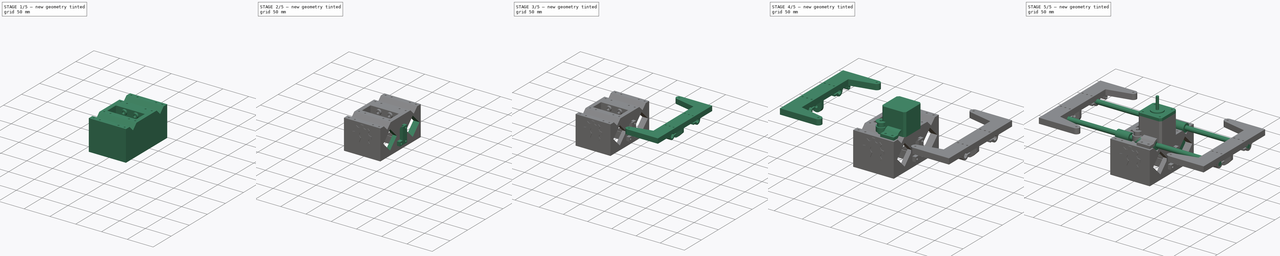
[diagram: build sequence overview — one tinted view per stage of 5, left to right]
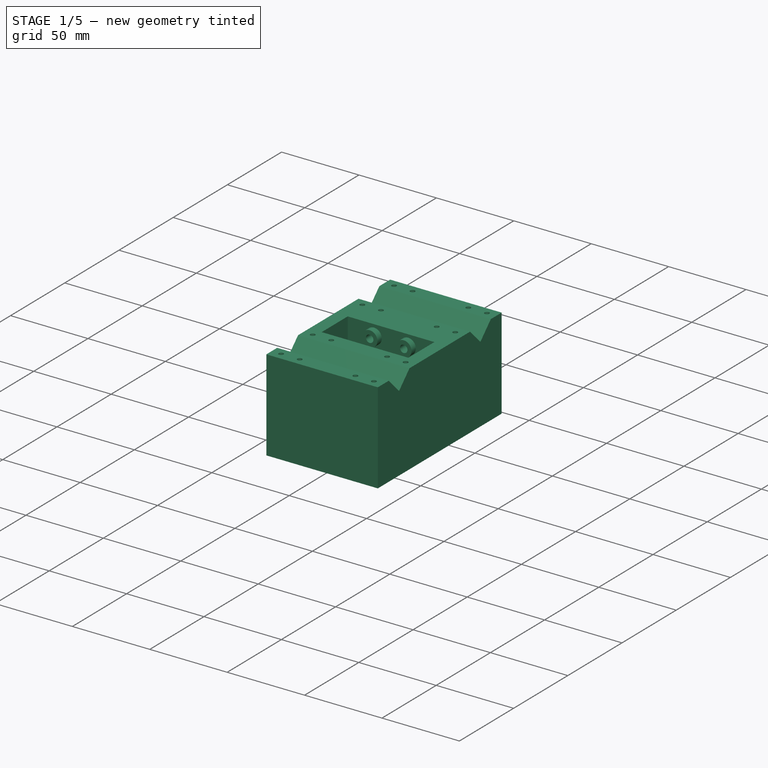
[diagram: stage 1 of 5 — iso view after this stage's code; geometry added in this stage tinted green]
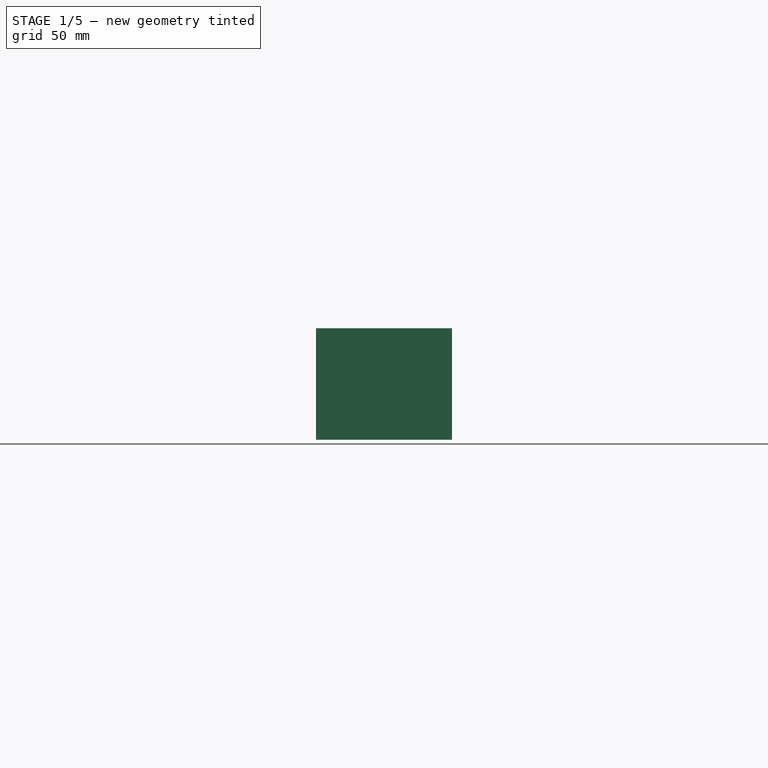
[diagram: stage 1 of 5 — front view after this stage's code; geometry added in this stage tinted green]
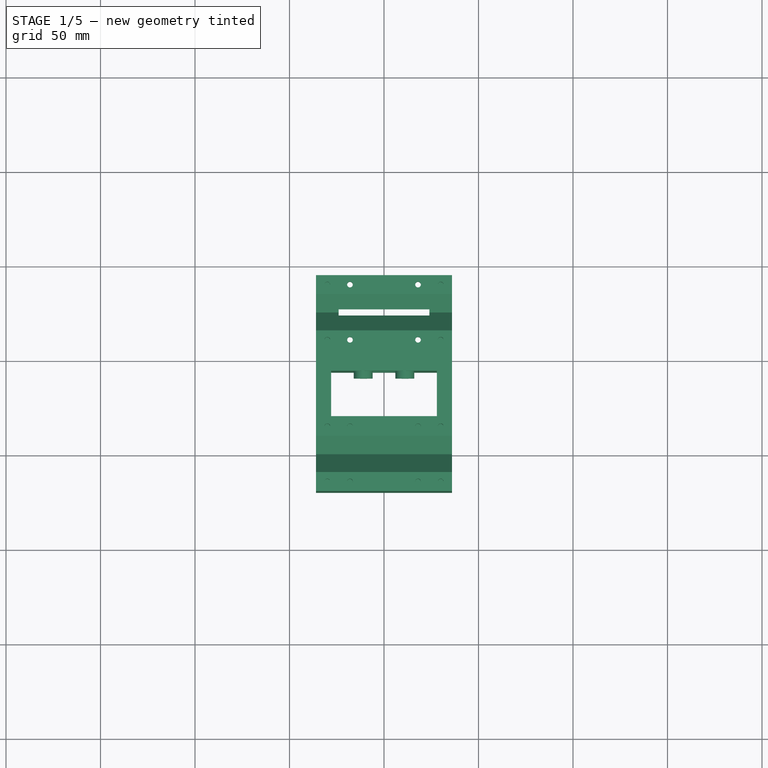
[diagram: stage 1 of 5 — top view after this stage's code; geometry added in this stage tinted green]
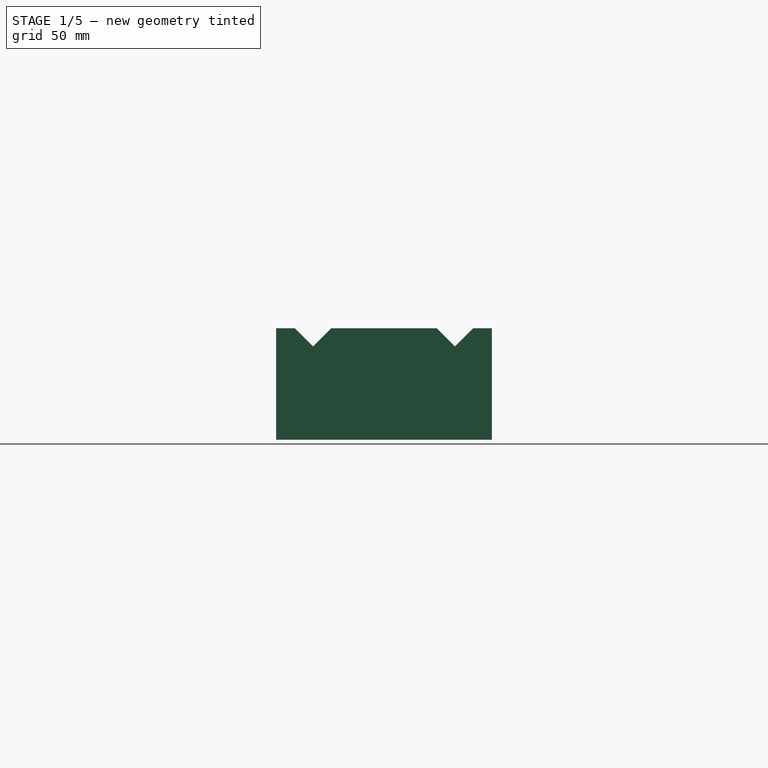
[diagram: stage 1 of 5 — right view after this stage's code; geometry added in this stage tinted green]
FCSTD DOCUMENT  (FreeCAD 0.16R4924 (Git))
Label: monty_X
License: All rights reserved
LicenseURL: http://en.wikipedia.org/wiki/All_rights_reserved
objects: Sketcher::SketchObject×27, Part::Feature×14, PartDesign::Pad×13, PartDesign::Pocket×11, App::DocumentObjectGroup×7, PartDesign::Revolution×3, Part::Compound×3, Part::Mirroring×2, PartDesign::Draft×1, Part::Extrusion×1
note: 102 computed .brp shape members not serialized (recipe doc carries the construction recipe); baked Part::Feature solids carry a one-line shape summary decoded from their .brp

FEATURE [Part::Feature] Revolution009  label="625zz_copy003"
  Placement = pos=(-135,35,-8) rot=(0.57735,0.57735,0.57735;2.0944rad)
  shape: bbox 16 x 5 x 16 mm, 4 faces (baked)
FEATURE [Part::Feature] Revolution010  label="625zz_copy004"
  Placement = pos=(135,35,-8) rot=(0.57735,0.57735,0.57735;2.0944rad)
  shape: bbox 16 x 5 x 16 mm, 4 faces (baked)
FEATURE [PartDesign::Pad] Pad008
  Length = 72
  Length2 = 100
  Midplane = true
  Placement = pos=(0,0,0) rot=(0.57735,0.57735,0.57735;2.0944rad)
  Sketch = -> Sketch007
  Type = 0
FEATURE [Sketcher::SketchObject] Sketch008
  Placement = pos=(0,0,-1) rot=(0,0,-1;1.5708rad)
  Support = -> Pad008 [Face10]
  sketch-geometry (4):
    g0: LineSegment StartX=-44 StartY=28 StartZ=0 EndX=-20 EndY=28 EndZ=0
    g1: LineSegment StartX=-20 StartY=28 StartZ=0 EndX=-20 EndY=-28 EndZ=0
    g2: LineSegment StartX=-20 StartY=-28 StartZ=0 EndX=-44 EndY=-28 EndZ=0
    g3: LineSegment StartX=-44 StartY=-28 StartZ=0 EndX=-44 EndY=28 EndZ=0
  constraints (12):
    c: Coincident(g0,g1)
    c: Coincident(g1,g2)
    c: Coincident(g2,g3)
    c: Coincident(g3,g0)
    c: Horizontal(g0)
    c: Horizontal(g2)
    c: Vertical(g1)
    c: Vertical(g3)
    c: Symmetric(g2,g0,g-1)
    c: DistanceY(g0) = 28
    c: DistanceX(g0) = -20
    c: Distance(g0) = 24
FEATURE [PartDesign::Pocket] Pocket
  Length = 5
  Placement = pos=(0,0,0) rot=(0.57735,0.57735,0.57735;2.0944rad)
  Sketch = -> Sketch008
  Type = 1
FEATURE [Sketcher::SketchObject] Sketch009
  Placement = pos=(0,0,-60) rot=(0.707107,0.707107,0;3.14159rad)
  Support = -> Pocket [Face13]
  sketch-geometry (4):
    g0: LineSegment StartX=49 StartY=24 StartZ=0 EndX=109 EndY=24 EndZ=0
    g1: LineSegment StartX=109 StartY=24 StartZ=0 EndX=109 EndY=-24 EndZ=0
    g2: LineSegment StartX=109 StartY=-24 StartZ=0 EndX=49 EndY=-24 EndZ=0
    g3: LineSegment StartX=49 StartY=-24 StartZ=0 EndX=49 EndY=24 EndZ=0
  constraints (12):
    c: Coincident(g0,g1)
    c: Coincident(g1,g2)
    c: Coincident(g2,g3)
    c: Coincident(g3,g0)
    c: Horizontal(g0)
    c: Horizontal(g2)
    c: Vertical(g1)
    c: Vertical(g3)
    c: DistanceX(g0) = 49
    c: DistanceY(g0) = 24
    c: Symmetric(g0,g2,g-1)
    c: Distance(g0) = 60
FEATURE [PartDesign::Pocket] Pocket001
  Length = 51
  Placement = pos=(0,0,0) rot=(0.57735,0.57735,0.57735;2.0944rad)
  Sketch = -> Sketch009
  Type = 0
FEATURE [Sketcher::SketchObject] Sketch010
  Placement = pos=(0,44,0) rot=(-0.57735,-0.57735,0.57735;4.18879rad)
  Support = -> Pocket001 [Face10]
  sketch-geometry (10):
    g0: Circle CenterX=32 CenterY=0 CenterZ=0 NormalX=0 NormalY=0 NormalZ=1 Radius=12
    g1: LineSegment [constr] StartX=16.5 StartY=15.5 StartZ=0 EndX=47.5 EndY=15.5 EndZ=0
    g2: LineSegment [constr] StartX=47.5 StartY=15.5 StartZ=0 EndX=47.5 EndY=-15.5 EndZ=0
    g3: LineSegment [constr] StartX=47.5 StartY=-15.5 StartZ=0 EndX=16.5 EndY=-15.5 EndZ=0
    g4: LineSegment [constr] StartX=16.5 StartY=-15.5 StartZ=0 EndX=16.5 EndY=15.5 EndZ=0
    g5: LineSegment [constr] StartX=16.5 StartY=15.5 StartZ=0 EndX=47.5 EndY=-15.5 EndZ=0
    g6: Circle CenterX=16.5 CenterY=15.5 CenterZ=0 NormalX=0 NormalY=0 NormalZ=1 Radius=1.75
    g7: Circle CenterX=47.5 CenterY=15.5 CenterZ=0 NormalX=0 NormalY=0 NormalZ=1 Radius=1.75
    g8: Circle CenterX=47.5 CenterY=-15.5 CenterZ=0 NormalX=0 NormalY=0 NormalZ=1 Radius=1.75
    g9: Circle CenterX=16.5 CenterY=-15.5 CenterZ=0 NormalX=0 NormalY=0 NormalZ=1 Radius=1.75
  constraints (25):
    c: PointOnObject(g0,g-1)
    c: DistanceX(g0) = 32
    c: Radius(g0) = 12
    c: Coincident(g1,g2)
    c: Coincident(g2,g3)
    c: Coincident(g3,g4)
    c: Coincident(g4,g1)
    c: Horizontal(g1)
    c: Horizontal(g3)
    c: Vertical(g2)
    c: Vertical(g4)
    c: Equal(g1,g2)
    c: Symmetric(g3,g1,g-1)
    c: Coincident(g5,g1)
    c: Coincident(g5,g2)
    c: PointOnObject(g0,g5)
    c: Distance(g1) = 31
    c: Coincident(g6,g1)
    c: Coincident(g7,g1)
    c: Coincident(g8,g2)
    c: Coincident(g9,g3)
    c: Equal(g9,g6)
    c: Equal(g6,g7)
    c: Equal(g7,g8)
    c: Radius(g7) = 1.75
FEATURE [PartDesign::Pocket] Pocket002
  Length = 5
  Placement = pos=(0,0,0) rot=(0.57735,0.57735,0.57735;2.0944rad)
  Sketch = -> Sketch010
  Type = 0
FEATURE [Sketcher::SketchObject] Sketch011
  Placement = pos=(0,44,0) rot=(-0.57735,-0.57735,0.57735;4.18879rad)
  Support = -> Pocket002 [Face10]
  sketch-geometry (3):
    g0: LineSegment [constr] StartX=8 StartY=11 StartZ=0 EndX=8 EndY=-11 EndZ=0
    g1: Circle CenterX=8 CenterY=11 CenterZ=0 NormalX=0 NormalY=0 NormalZ=1 Radius=5
    g2: Circle CenterX=8 CenterY=-11 CenterZ=0 NormalX=0 NormalY=0 NormalZ=1 Radius=5
  constraints (8):
    c: Vertical(g0)
    c: Symmetric(g0,g0,g-1)
    c: DistanceX(g0) = 8
    c: DistanceY(g0) = 11
    c: Coincident(g1,g0)
    c: Radius(g1) = 5
    c: Coincident(g2,g0)
    c: Equal(g2,g1)
FEATURE [PartDesign::Pad] Pad009
  Length = 4
  Length2 = 100
  Placement = pos=(0,0,0) rot=(0.57735,0.57735,0.57735;2.0944rad)
  Sketch = -> Sketch011
  Type = 0
FEATURE [Sketcher::SketchObject] Sketch012
  Placement = pos=(0,40,0) rot=(-0.57735,-0.57735,0.57735;4.18879rad)
  Support = -> Pad009 [Face29]
  sketch-geometry (3):
    g0: LineSegment [constr] StartX=8 StartY=11 StartZ=0 EndX=8 EndY=-11 EndZ=0
    g1: Circle CenterX=8 CenterY=11 CenterZ=0 NormalX=0 NormalY=0 NormalZ=1 Radius=2.4
    g2: Circle CenterX=8 CenterY=-11 CenterZ=0 NormalX=0 NormalY=0 NormalZ=1 Radius=2.4
  constraints (8):
    c: Vertical(g0)
    c: DistanceX(g0) = 8
    c: DistanceY(g0) = 11
    c: Symmetric(g0,g0,g-1)
    c: Coincident(g1,g0)
    c: Radius(g1) = 2.4
    c: Coincident(g2,g0)
    c: Equal(g2,g1)
FEATURE [PartDesign::Pocket] Pocket003
  Length = 8
  Placement = pos=(0,0,0) rot=(0.57735,0.57735,0.57735;2.0944rad)
  Sketch = -> Sketch012
  Type = 0
FEATURE [Sketcher::SketchObject] Sketch015
  ExternalGeometry = -> [Pocket003]
  Placement = pos=(0,0,-1) rot=(0,0,-1;1.5708rad)
  Support = -> Pocket003 [Face2]
  sketch-geometry (32):
    g0: LineSegment [constr] StartX=-89.6066 StartY=30 StartZ=0 EndX=-60.3934 EndY=30 EndZ=0
    g1: LineSegment [constr] StartX=-60.3934 StartY=30 StartZ=0 EndX=-60.3934 EndY=18 EndZ=0
    g2: LineSegment [constr] StartX=-60.3934 StartY=18 StartZ=0 EndX=-89.6066 EndY=18 EndZ=0
    g3: LineSegment [constr] StartX=-89.6066 StartY=18 StartZ=0 EndX=-89.6066 EndY=30 EndZ=0
    g4: Circle CenterX=-89.6066 CenterY=30 CenterZ=0 NormalX=0 NormalY=0 NormalZ=1 Radius=1.5
    g5: Circle CenterX=-89.6066 CenterY=18 CenterZ=0 NormalX=0 NormalY=0 NormalZ=1 Radius=1.5
    g6: Circle CenterX=-60.3934 CenterY=30 CenterZ=0 NormalX=0 NormalY=0 NormalZ=1 Radius=1.5
    g7: Circle CenterX=-60.3934 CenterY=18 CenterZ=0 NormalX=0 NormalY=0 NormalZ=1 Radius=1.5
    g8: LineSegment [constr] StartX=-89.6066 StartY=-30 StartZ=0 EndX=-60.3934 EndY=-30 EndZ=0
    g9: LineSegment [constr] StartX=-60.3934 StartY=-30 StartZ=0 EndX=-60.3934 EndY=-18 EndZ=0
    g10: LineSegment [constr] StartX=-60.3934 StartY=-18 StartZ=0 EndX=-89.6066 EndY=-18 EndZ=0
    g11: LineSegment [constr] StartX=-89.6066 StartY=-18 StartZ=0 EndX=-89.6066 EndY=-30 EndZ=0
    g12: Circle CenterX=-89.6066 CenterY=-18 CenterZ=0 NormalX=0 NormalY=0 NormalZ=1 Radius=1.5
    g13: Circle CenterX=-89.6066 CenterY=-30 CenterZ=0 NormalX=0 NormalY=0 NormalZ=1 Radius=1.5
    g14: Circle CenterX=-60.3934 CenterY=-18 CenterZ=0 NormalX=0 NormalY=0 NormalZ=1 Radius=1.5
    g15: Circle CenterX=-60.3934 CenterY=-30 CenterZ=0 NormalX=0 NormalY=0 NormalZ=1 Radius=1.5
    g16: LineSegment [constr] StartX=-14.6066 StartY=30 StartZ=0 EndX=14.6066 EndY=30 EndZ=0
    g17: LineSegment [constr] StartX=14.6066 StartY=30 StartZ=0 EndX=14.6066 EndY=18 EndZ=0
    g18: LineSegment [constr] StartX=14.6066 StartY=18 StartZ=0 EndX=-14.6066 EndY=18 EndZ=0
    g19: LineSegment [constr] StartX=-14.6066 StartY=18 StartZ=0 EndX=-14.6066 EndY=30 EndZ=0
    g20: LineSegment [constr] StartX=-14.6066 StartY=-18 StartZ=0 EndX=14.6066 EndY=-18 EndZ=0
    g21: LineSegment [constr] StartX=14.6066 StartY=-18 StartZ=0 EndX=14.6066 EndY=-30 EndZ=0
    g22: LineSegment [constr] StartX=14.6066 StartY=-30 StartZ=0 EndX=-14.6066 EndY=-30 EndZ=0
    g23: LineSegment [constr] StartX=-14.6066 StartY=-30 StartZ=0 EndX=-14.6066 EndY=-18 EndZ=0
    g24: Circle CenterX=-14.6066 CenterY=30 CenterZ=0 NormalX=0 NormalY=0 NormalZ=1 Radius=1.5
    g25: Circle CenterX=14.6066 CenterY=18 CenterZ=0 NormalX=0 NormalY=0 NormalZ=1 Radius=1.5
    g26: Circle CenterX=14.6066 CenterY=30 CenterZ=0 NormalX=0 NormalY=0 NormalZ=1 Radius=1.5
    g27: Circle CenterX=-14.6066 CenterY=18 CenterZ=0 NormalX=0 NormalY=0 NormalZ=1 Radius=1.5
    g28: Circle CenterX=-14.6066 CenterY=-18 CenterZ=0 NormalX=0 NormalY=0 NormalZ=1 Radius=1.5
    g29: Circle CenterX=-14.6066 CenterY=-30 CenterZ=0 NormalX=0 NormalY=0 NormalZ=1 Radius=1.5
    g30: Circle CenterX=14.6066 CenterY=-18 CenterZ=0 NormalX=0 NormalY=0 NormalZ=1 Radius=1.5
    g31: Circle CenterX=14.6066 CenterY=-30 CenterZ=0 NormalX=0 NormalY=0 NormalZ=1 Radius=1.5
  constraints (80):
    c: Coincident(g0,g1)
    c: Coincident(g1,g2)
    c: Coincident(g2,g3)
    c: Coincident(g3,g0)
    c: Horizontal(g0)
    c: Horizontal(g2)
    c: Vertical(g1)
    c: Vertical(g3)
    c: DistanceY(g0,g-6) = 6
    c: DistanceX(g-6,g0) = -5
    c: Distance(g3) = 12
    c: DistanceX(g0,g-5) = -5
    c: Coincident(g4,g0)
    c: Coincident(g5,g2)
    c: Coincident(g6,g0)
    c: Coincident(g7,g1)
    c: Equal(g7,g6)
    c: Equal(g6,g4)
    c: Equal(g4,g5)
    c: Radius(g7) = 1.5
    c: Coincident(g8,g9)
    c: Coincident(g9,g10)
    c: Coincident(g10,g11)
    c: Coincident(g11,g8)
    c: Horizontal(g8)
    c: Horizontal(g10)
    c: Vertical(g9)
    c: Vertical(g11)
    c: Distance(g11) = 12
    c: DistanceX(g8,g-6) = 5
    c: DistanceX(g-5,g8) = 5
    c: DistanceY(g8,g-5) = -6
    c: Coincident(g12,g10)
    c: Coincident(g13,g8)
    c: Coincident(g14,g9)
    c: Coincident(g15,g8)
    c: Equal(g15,g14)
    c: Equal(g14,g12)
    c: Equal(g12,g13)
    c: Radius(g12) = 1.5
    c: Coincident(g16,g17)
    c: Coincident(g17,g18)
    c: Coincident(g18,g19)
    c: Coincident(g19,g16)
    c: Horizontal(g16)
    c: Horizontal(g18)
    c: Vertical(g17)
    c: Vertical(g19)
    c: Coincident(g20,g21)
    c: Coincident(g21,g22)
    c: Coincident(g22,g23)
    c: Coincident(g23,g20)
    c: Horizontal(g20)
    c: Horizontal(g22)
    c: Vertical(g21)
    c: Vertical(g23)
    c: Equal(g21,g17)
    c: Equal(g17,g1)
    c: DistanceY(g22,g-3) = -6
    c: DistanceX(g22,g-3) = 5
    c: Equal(g10,g20)
    c: Equal(g20,g18)
    c: DistanceY(g16,g-4) = 6
    c: DistanceX(g16,g-4) = -5
    c: Coincident(g24,g16)
    c: Coincident(g25,g17)
    c: Coincident(g26,g16)
    c: Coincident(g27,g18)
    c: Equal(g27,g24)
    c: Equal(g24,g26)
    c: Equal(g26,g25)
    c: Radius(g27) = 1.5
    c: Coincident(g28,g20)
    c: Coincident(g29,g22)
    c: Coincident(g30,g20)
    c: Coincident(g31,g21)
    c: Equal(g31,g30)
    c: Equal(g30,g28)
    c: Equal(g28,g29)
    c: Radius(g28) = 1.5
FEATURE [Sketcher::SketchObject] Sketch016
  Placement = pos=(0,0,2) rot=(0,0,1;0rad)
  sketch-geometry (19):
    g0: LineSegment [constr] StartX=62.0004 StartY=-36.5 StartZ=0 EndX=62.0004 EndY=111.5 EndZ=0
    g1: LineSegment [constr] StartX=0 StartY=0 StartZ=0 EndX=0 EndY=75 EndZ=0
    g2: LineSegment [constr] StartX=0 StartY=37.5 StartZ=0 EndX=62.0004 EndY=37.5 EndZ=0
    g3: LineSegment [constr] StartX=0 StartY=37.5 StartZ=0 EndX=-85.9996 EndY=37.5 EndZ=0
    g4: LineSegment [constr] StartX=-85.9996 StartY=-36.5 StartZ=0 EndX=-85.9996 EndY=111.5 EndZ=0
    g5: LineSegment [constr] StartX=-85.9996 StartY=-36.5 StartZ=0 EndX=62.0004 EndY=-36.5 EndZ=0
    g6: LineSegment [constr] StartX=-162 StartY=111.5 StartZ=0 EndX=-85.9996 EndY=111.5 EndZ=0
    g7: LineSegment [constr] StartX=-85.9996 StartY=111.5 StartZ=0 EndX=62.0004 EndY=111.5 EndZ=0
    g8: LineSegment [constr] StartX=62.0004 StartY=111.5 StartZ=0 EndX=138 EndY=111.5 EndZ=0
    g9: Circle CenterX=-85.9996 CenterY=111.5 CenterZ=0 NormalX=0 NormalY=0 NormalZ=1 Radius=1.5
    g10: ArcOfCircle CenterX=-85.9996 CenterY=111.5 CenterZ=0 NormalX=0 NormalY=0 NormalZ=1 Radius=6 StartAngle=4.93024 EndAngle=7.85398
    g11: LineSegment StartX=-84.7028 StartY=105.642 StartZ=0 EndX=-126 EndY=96.5 EndZ=0
    g12: LineSegment StartX=-126 StartY=96.5 StartZ=0 EndX=-126 EndY=-21.5 EndZ=0
    g13: LineSegment StartX=-126 StartY=-21.5 StartZ=0 EndX=-84.7028 EndY=-30.6418 EndZ=0
    g14: LineSegment StartX=-85.9996 StartY=-42.5 StartZ=0 EndX=-150 EndY=-42.5 EndZ=0
    g15: LineSegment StartX=-150 StartY=-42.5 StartZ=0 EndX=-150 EndY=117.5 EndZ=0
    g16: LineSegment StartX=-150 StartY=117.5 StartZ=0 EndX=-85.9996 EndY=117.5 EndZ=0
    g17: Circle CenterX=-85.9996 CenterY=-36.5 CenterZ=0 NormalX=0 NormalY=0 NormalZ=1 Radius=1.5
    g18: ArcOfCircle CenterX=-85.9996 CenterY=-36.5 CenterZ=0 NormalX=0 NormalY=0 NormalZ=1 Radius=6 StartAngle=4.71239 EndAngle=7.63613
  constraints (52):
    c: Vertical(g0)
    c: Distance(g0) = 148
    c: Vertical(g1)
    c: Distance(g1) = 75
    c: PointOnObject(g2,g1)
    c: PointOnObject(g2,g0)
    c: Symmetric(g1,g1,g2)
    c: Symmetric(g0,g0,g2)
    c: Coincident(g1,g-1)
    c: Coincident(g3,g2)
    c: Vertical(g4)
    c: PointOnObject(g3,g4)
    c: Symmetric(g4,g4,g3)
    c: Coincident(g5,g4)
    c: Coincident(g5,g0)
    c: Horizontal(g5)
    c: Equal(g5,g4)
    c: Coincident(g6,g4)
    c: Horizontal(g6)
    c: Coincident(g6,g7)
    c: Coincident(g7,g0)
    c: Coincident(g7,g8)
    c: Horizontal(g8)
    c: Equal(g8,g6)
    c: Distance(g8,g6) = 300
    c: Coincident(g9,g4)
    c: Coincident(g10,g4)
    c: Radius(g9) = 1.5
    c: Tangent(g10,g11) = 1.5708
    c: Coincident(g11,g12)
    c: Vertical(g12)
    c: Coincident(g12,g13)
    c: Horizontal(g14)
    c: Coincident(g14,g15)
    c: Vertical(g15)
    c: Coincident(g15,g16)
    c: Coincident(g16,g10)
    c: DistanceX(g4,g11) = -40
    c: Horizontal(g16)
    c: Tangent(g10,g16)
    c: Distance(g11,g15) = 24
    c: Coincident(g17,g4)
    c: Coincident(g18,g4)
    c: Coincident(g18,g13)
    c: Coincident(g18,g14)
    c: Tangent(g18,g14)
    c: Tangent(g18,g13)
    c: Equal(g17,g9)
    c: Equal(g18,g10)
    c: Radius(g18) = 6
    c: Equal(g13,g11)
    c: Distance(g12) = 118
FEATURE [PartDesign::Pocket] Pocket005
  Length = 10
  Placement = pos=(0,0,0) rot=(0.57735,0.57735,0.57735;2.0944rad)
  Sketch = -> Sketch015
  Type = 0
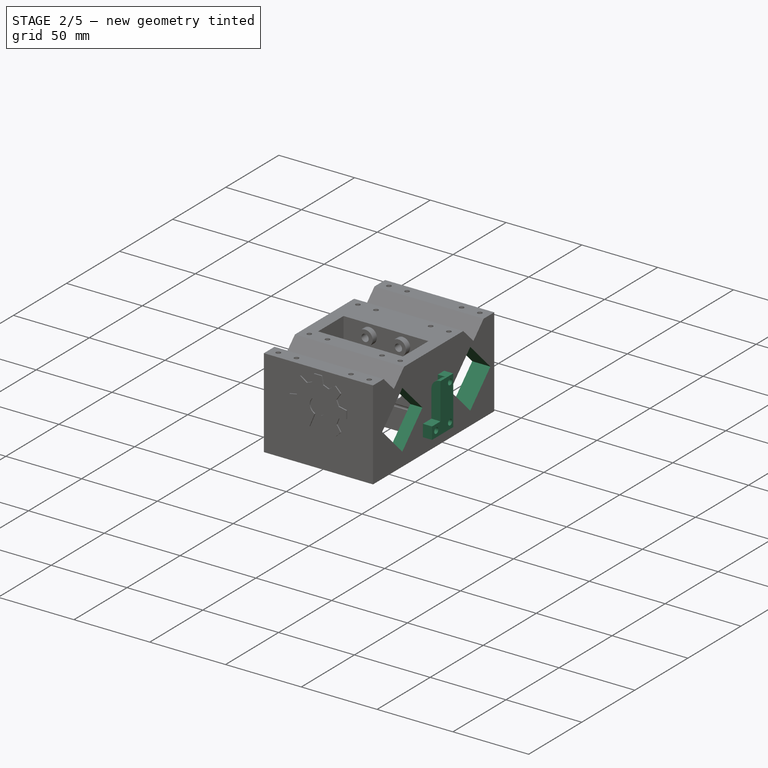
[diagram: stage 2 of 5 — iso view after this stage's code; geometry added in this stage tinted green]
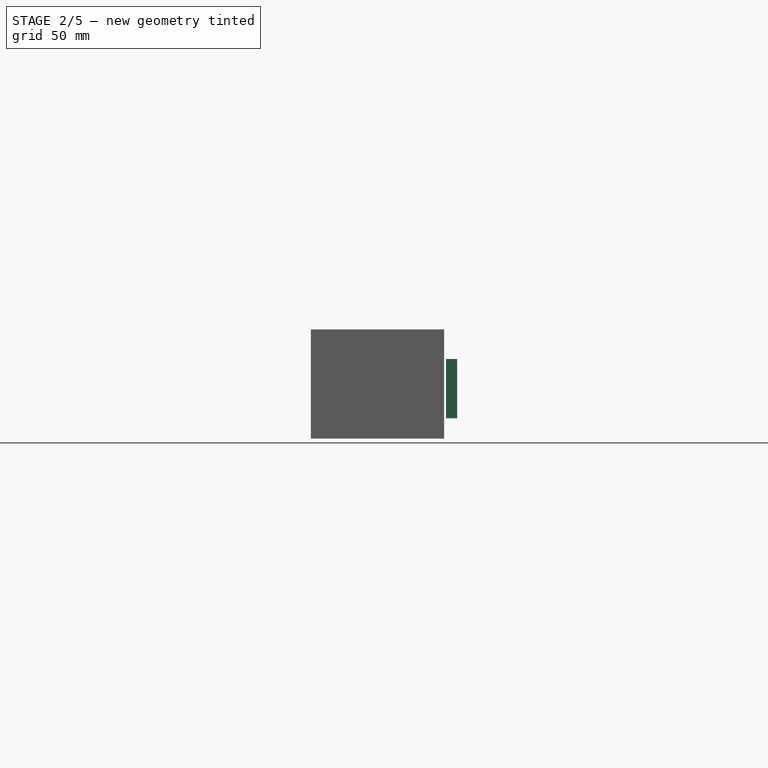
[diagram: stage 2 of 5 — front view after this stage's code; geometry added in this stage tinted green]
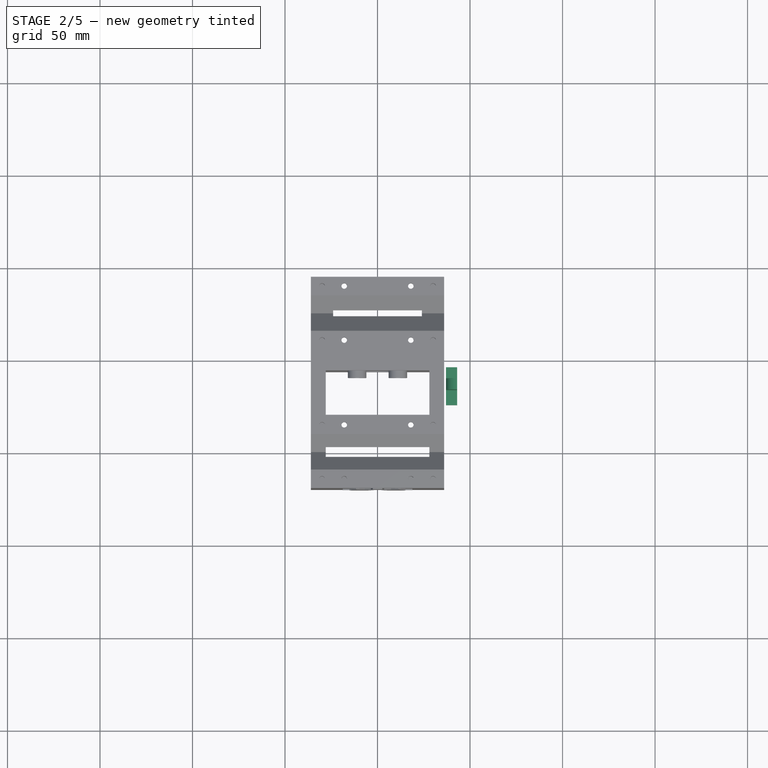
[diagram: stage 2 of 5 — top view after this stage's code; geometry added in this stage tinted green]
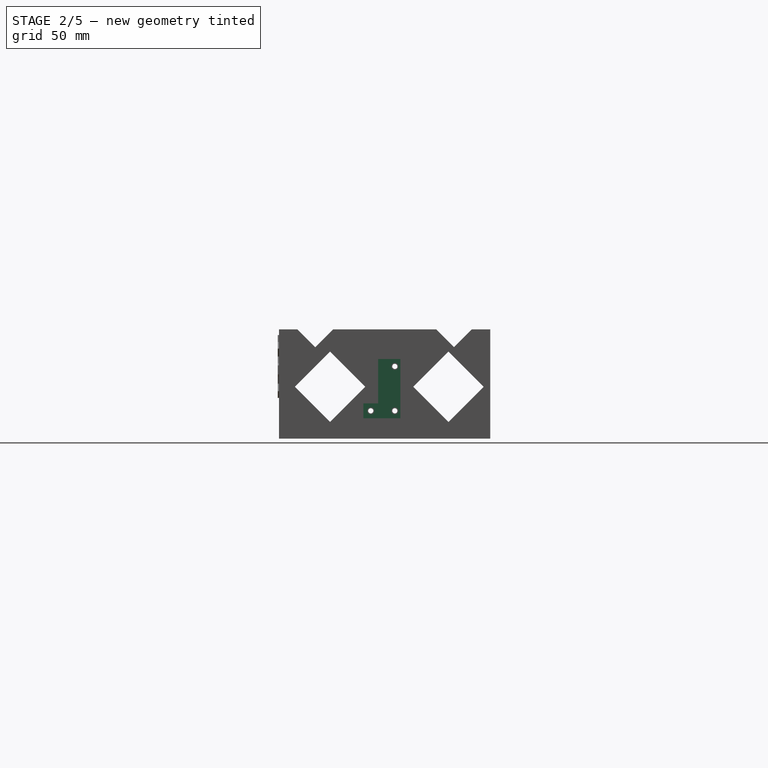
[diagram: stage 2 of 5 — right view after this stage's code; geometry added in this stage tinted green]
FEATURE [Sketcher::SketchObject] Sketch022
  ExternalGeometry = -> [Pocket005]
  Placement = pos=(0,94.6066,0) rot=(0.57735,0.57735,0.57735;4.18879rad)
  Support = -> Pocket005 [Face22]
  sketch-geometry (6):
    g0: LineSegment [constr] StartX=-1 StartY=-36 StartZ=0 EndX=-1 EndY=-26.5 EndZ=0
    g1: LineSegment [constr] StartX=-1 StartY=-26.5 StartZ=0 EndX=-6.25 EndY=-26.5 EndZ=0
    g2: LineSegment [constr] StartX=-6.25 StartY=-26.5 StartZ=0 EndX=-15.75 EndY=-26.5 EndZ=0
    g3: LineSegment [constr] StartX=-15.75 StartY=-26.5 StartZ=0 EndX=-21 EndY=-26.5 EndZ=0
    g4: Circle CenterX=-15.75 CenterY=-26.5 CenterZ=0 NormalX=0 NormalY=0 NormalZ=1 Radius=1.1
    g5: Circle CenterX=-6.25 CenterY=-26.5 CenterZ=0 NormalX=0 NormalY=0 NormalZ=1 Radius=1.1
  constraints (16):
    c: Coincident(g-3,g0)
    c: Vertical(g0)
    c: Coincident(g0,g1)
    c: Horizontal(g1)
    c: Coincident(g1,g2)
    c: Horizontal(g2)
    c: Coincident(g2,g3)
    c: Horizontal(g3)
    c: Equal(g3,g1)
    c: Distance(g2) = 9.5
    c: Equal(g0,g2)
    c: Distance(g3,g0) = 20
    c: Coincident(g4,g2)
    c: Radius(g4) = 1.1
    c: Coincident(g5,g1)
    c: Equal(g5,g4)
FEATURE [PartDesign::Pocket] Pocket006007
  Length = 10
  Placement = pos=(0,0,0) rot=(0.57735,0.57735,0.57735;2.0944rad)
  Sketch = -> Sketch022
  Type = 0
FEATURE [App::DocumentObjectGroup] Group004  label="Xends"
  Group = -> [Pad011,Pocket006005,Pad012,Pad013,Pocket006006,Pad014,Draft,Part__Mirroring]
FEATURE [Sketcher::SketchObject] Sketch024
  Placement = pos=(-37,0,0) rot=(0.57735,0.57735,-0.57735;4.18879rad)
  sketch-geometry (13):
    g0: LineSegment StartX=46 StartY=17 StartZ=0 EndX=40 EndY=17 EndZ=0
    g1: LineSegment StartX=40 StartY=17 StartZ=0 EndX=40 EndY=41 EndZ=0
    g2: LineSegment StartX=40 StartY=41 StartZ=0 EndX=26 EndY=41 EndZ=0
    g3: LineSegment StartX=26 StartY=41 StartZ=0 EndX=26 EndY=49 EndZ=0
    g4: LineSegment StartX=26 StartY=49 StartZ=0 EndX=46 EndY=49 EndZ=0
    g5: LineSegment StartX=46 StartY=49 StartZ=0 EndX=46 EndY=17 EndZ=0
    g6: Circle CenterX=43 CenterY=21 CenterZ=0 NormalX=0 NormalY=0 NormalZ=1 Radius=1.9
    g7: LineSegment [constr] StartX=43 StartY=21 StartZ=0 EndX=43 EndY=17 EndZ=0
    g8: LineSegment [constr] StartX=26 StartY=45 StartZ=0 EndX=30 EndY=45 EndZ=0
    g9: LineSegment [constr] StartX=30 StartY=45 StartZ=0 EndX=43 EndY=45 EndZ=0
    g10: LineSegment [constr] StartX=43 StartY=45 StartZ=0 EndX=43 EndY=21 EndZ=0
    g11: Circle CenterX=30 CenterY=45 CenterZ=0 NormalX=0 NormalY=0 NormalZ=1 Radius=1.9
    g12: Circle CenterX=43 CenterY=45 CenterZ=0 NormalX=0 NormalY=0 NormalZ=1 Radius=1.9
  constraints (37):
    c: Horizontal(g0)
    c: Coincident(g0,g1)
    c: Vertical(g1)
    c: Coincident(g1,g2)
    c: Horizontal(g2)
    c: Coincident(g2,g3)
    c: Vertical(g3)
    c: Coincident(g3,g4)
    c: Horizontal(g4)
    c: Coincident(g4,g5)
    c: Coincident(g5,g0)
    c: Vertical(g5)
    c: DistanceX(g0) = 40
    c: DistanceY(g0) = 17
    c: Distance(g6,g0) = 4
    c: Coincident(g7,g6)
    c: PointOnObject(g7,g0)
    c: Vertical(g7)
    c: Symmetric(g0,g0,g7)
    c: Distance(g0) = 6
    c: Radius(g6) = 1.9
    c: Distance(g3) = 8
    c: PointOnObject(g8,g3)
    c: Coincident(g8,g9)
    c: Horizontal(g9)
    c: Coincident(g9,g10)
    c: Coincident(g10,g6)
    c: Vertical(g10)
    c: Horizontal(g8)
    c: Symmetric(g2,g3,g8)
    c: Equal(g8,g7)
    c: Coincident(g11,g8)
    c: Coincident(g12,g9)
    c: Equal(g12,g11)
    c: Equal(g11,g6)
    c: Distance(g2) = 14
    c: Distance(g1) = 24
FEATURE [PartDesign::Pad] Pad015
  Length = 6
  Length2 = 100
  Placement = pos=(-37,0,0) rot=(0.57735,0.57735,-0.57735;4.18879rad)
  Sketch = -> Sketch024
  Type = 0
FEATURE [Sketcher::SketchObject] Sketch025
  ExternalGeometry = -> [Pad015]
  Placement = pos=(-37,40,0) rot=(0.57735,-0.57735,0.57735;2.0944rad)
  Support = -> Pad015 [Face2]
  sketch-geometry (4):
    g0: LineSegment StartX=-41 StartY=6 StartZ=0 EndX=-17 EndY=6 EndZ=0
    g1: LineSegment StartX=-23 StartY=6e-11 StartZ=0 EndX=-41 EndY=6e-11 EndZ=0
    g2: LineSegment StartX=-41 StartY=6e-11 StartZ=0 EndX=-41 EndY=6 EndZ=0
    g3: ArcOfCircle CenterX=-23 CenterY=6 CenterZ=0 NormalX=0 NormalY=0 NormalZ=1 Radius=6 StartAngle=4.71239 EndAngle=6.28319
  constraints (12):
    c: Coincident(g1,g2)
    c: Coincident(g2,g0)
    c: Horizontal(g0)
    c: Horizontal(g1)
    c: Vertical(g2)
    c: Coincident(g0,g-3)
    c: PointOnObject(g3,g0)
    c: Coincident(g3,g0)
    c: Coincident(g3,g1)
    c: Tangent(g3,g1)
    c: PointOnObject(g1,g-1)
    c: Coincident(g0,g-3)
FEATURE [PartDesign::Pad] Pad016
  Length = 6
  Length2 = 100
  Placement = pos=(-37,0,0) rot=(0.57735,0.57735,-0.57735;4.18879rad)
  Sketch = -> Sketch025
  Type = 0
FEATURE [Part::Mirroring] Part__Mirroring001  label="Pad016 (Mirror #2)"
  Base = (0,0,0)
  Normal = (1,0,0)
  Source = -> Pad016
FEATURE [App::DocumentObjectGroup] Group006  label="Xtensioner"
  Group = -> [Pad015,Pad016,Part__Mirroring001]
FEATURE [Sketcher::SketchObject] Sketch026
  Placement = pos=(-36,0,0) rot=(0.57735,0.57735,-0.57735;4.18879rad)
  Support = -> Pocket006007 [Face4]
  sketch-geometry (18):
    g0: Circle CenterX=30 CenterY=45 CenterZ=0 NormalX=0 NormalY=0 NormalZ=1 Radius=1.4
    g1: LineSegment [constr] StartX=30 StartY=45 StartZ=0 EndX=43 EndY=45 EndZ=0
    g2: LineSegment [constr] StartX=43 StartY=45 StartZ=0 EndX=43 EndY=21 EndZ=0
    g3: Circle CenterX=43 CenterY=45 CenterZ=0 NormalX=0 NormalY=0 NormalZ=1 Radius=1.4
    g4: Circle CenterX=43 CenterY=21 CenterZ=0 NormalX=0 NormalY=0 NormalZ=1 Radius=1.4
    g5: LineSegment StartX=8 StartY=13 StartZ=0 EndX=27 EndY=32 EndZ=0
    g6: LineSegment StartX=27 StartY=32 StartZ=0 EndX=8 EndY=51 EndZ=0
    g7: LineSegment StartX=8 StartY=51 StartZ=0 EndX=-11 EndY=32 EndZ=0
    g8: LineSegment StartX=-11 StartY=32 StartZ=0 EndX=8 EndY=13 EndZ=0
    g9: Circle [constr] CenterX=8 CenterY=32 CenterZ=0 NormalX=0 NormalY=0 NormalZ=1 Radius=19
    g10: LineSegment [constr] StartX=8 StartY=51 StartZ=0 EndX=8 EndY=13 EndZ=0
    g11: LineSegment StartX=72 StartY=13 StartZ=0 EndX=91 EndY=32 EndZ=0
    g12: LineSegment StartX=91 StartY=32 StartZ=0 EndX=72 EndY=51 EndZ=0
    g13: LineSegment StartX=72 StartY=51 StartZ=0 EndX=53 EndY=32 EndZ=0
    g14: LineSegment StartX=53 StartY=32 StartZ=0 EndX=72 EndY=13 EndZ=0
    g15: Circle [constr] CenterX=72 CenterY=32 CenterZ=0 NormalX=0 NormalY=0 NormalZ=1 Radius=19
    g16: LineSegment [constr] StartX=72 StartY=51 StartZ=0 EndX=72 EndY=13 EndZ=0
    g17: LineSegment [constr] StartX=8 StartY=32 StartZ=0 EndX=72 EndY=32 EndZ=0
  constraints (49):
    c: Coincident(g1,g0)
    c: Horizontal(g1)
    c: Coincident(g2,g1)
    c: Vertical(g2)
    c: DistanceX(g2) = 43
    c: DistanceY(g2) = 21
    c: Distance(g2) = 24
    c: Distance(g1) = 13
    c: Radius(g0) = 1.4
    c: Coincident(g3,g1)
    c: Equal(g3,g0)
    c: Coincident(g4,g2)
    c: Equal(g4,g0)
    c: Coincident(g5,g6)
    c: Coincident(g6,g7)
    c: Coincident(g7,g8)
    c: Coincident(g8,g5)
    c: Equal(g5,g6)
    c: Equal(g5,g7)
    c: Equal(g5,g8)
    c: PointOnObject(g5,g9)
    c: PointOnObject(g6,g9)
    c: PointOnObject(g7,g9)
    c: PointOnObject(g8,g9)
    c: Coincident(g10,g6)
    c: Coincident(g10,g5)
    c: Vertical(g10)
    c: Distance(g10) = 38
    c: Coincident(g11,g12)
    c: Coincident(g12,g13)
    c: Coincident(g13,g14)
    c: Coincident(g14,g11)
    c: Equal(g11,g12)
    c: Equal(g11,g13)
    c: Equal(g11,g14)
    c: PointOnObject(g11,g15)
    c: PointOnObject(g12,g15)
    c: PointOnObject(g13,g15)
    c: PointOnObject(g14,g15)
    c: Coincident(g16,g12)
    c: Coincident(g16,g11)
    c: Vertical(g16)
    c: Equal(g16,g10)
    c: Coincident(g17,g9)
    c: Coincident(g15,g17)
    c: Horizontal(g17)
    c: DistanceX(g15) = 72
    c: DistanceX(g9) = 8
    c: DistanceY(g9) = 32
FEATURE [PartDesign::Pocket] Pocket006008
  Length = 5
  Placement = pos=(0,0,0) rot=(0.57735,0.57735,0.57735;2.0944rad)
  Sketch = -> Sketch026
  Type = 1
FEATURE [Part::Feature] Path
  shape: bbox 37.79 x 34.01 x 2e-07 mm, 1 faces, 0 solids (baked)
FEATURE [Part::Extrusion] Extrude  label="OSHW_logo"
  Base = -> Path
  Dir = (0,0,2)
  Placement = pos=(-24.3,-18.3,-4) rot=(1,0,0;1.5708rad)
  Solid = true
FEATURE [Sketcher::SketchObject] Sketch027
  ExternalGeometry = -> [Pocket006008]
  Placement = pos=(0,0,-60) rot=(0.707107,0.707107,0;3.14159rad)
  Support = -> Pocket006008 [Face23]
  sketch-geometry (4):
    g0: LineSegment StartX=20 StartY=28 StartZ=0 EndX=-11.6066 EndY=28 EndZ=0
    g1: LineSegment StartX=-11.6066 StartY=28 StartZ=0 EndX=-11.6066 EndY=-28 EndZ=0
    g2: LineSegment StartX=-11.6066 StartY=-28 StartZ=0 EndX=20 EndY=-28 EndZ=0
    g3: LineSegment StartX=20 StartY=-28 StartZ=0 EndX=20 EndY=28 EndZ=0
  constraints (11):
    c: Coincident(g0,g1)
    c: Coincident(g1,g2)
    c: Coincident(g2,g3)
    c: Coincident(g3,g0)
    c: Horizontal(g0)
    c: Horizontal(g2)
    c: Vertical(g1)
    c: Vertical(g3)
    c: Coincident(g0,g-3)
    c: Coincident(g2,g-3)
    c: Distance(g0,g-4) = 8
FEATURE [PartDesign::Pocket] Pocket006009
  Length = 52
  Placement = pos=(0,0,0) rot=(0.57735,0.57735,0.57735;2.0944rad)
  Sketch = -> Sketch027
  Type = 0
FEATURE [App::DocumentObjectGroup] Group005  label="Xbrick"
  Group = -> [Pad008,Pocket,Pocket001,Pocket002,Pad009,Pocket003,Pocket005,Pocket006007,Pocket006009,Pocket006008]
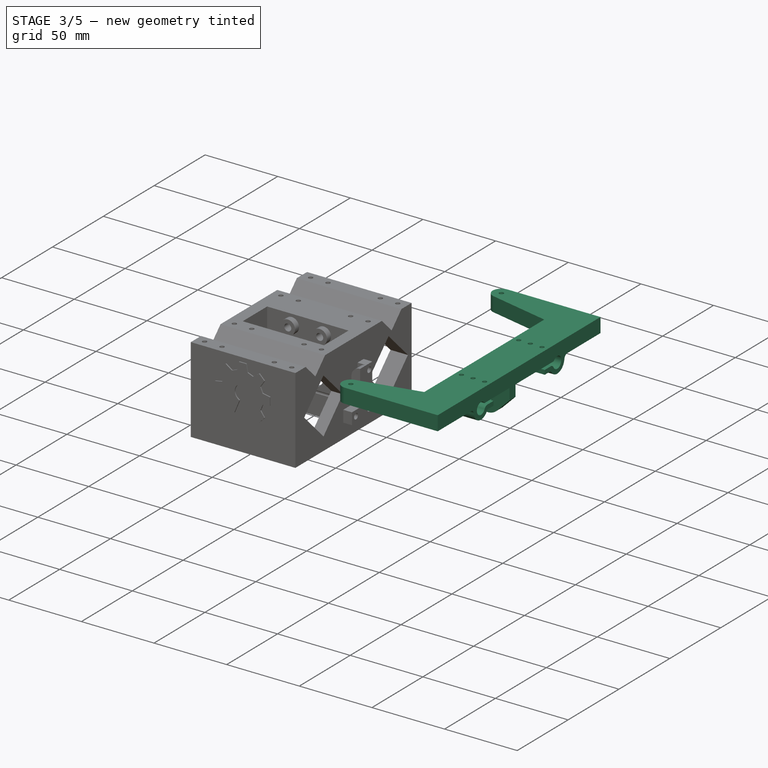
[diagram: stage 3 of 5 — iso view after this stage's code; geometry added in this stage tinted green]
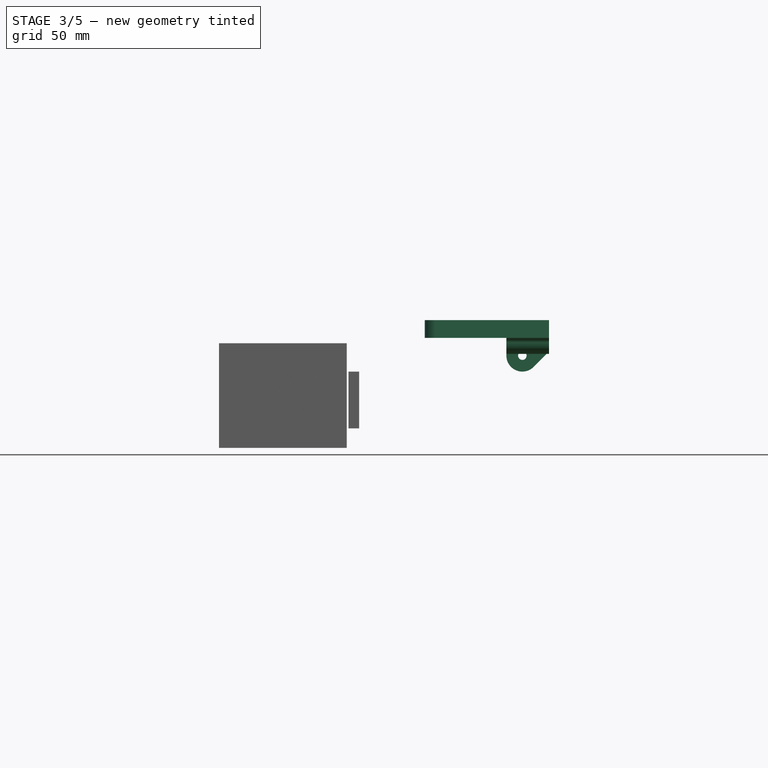
[diagram: stage 3 of 5 — front view after this stage's code; geometry added in this stage tinted green]
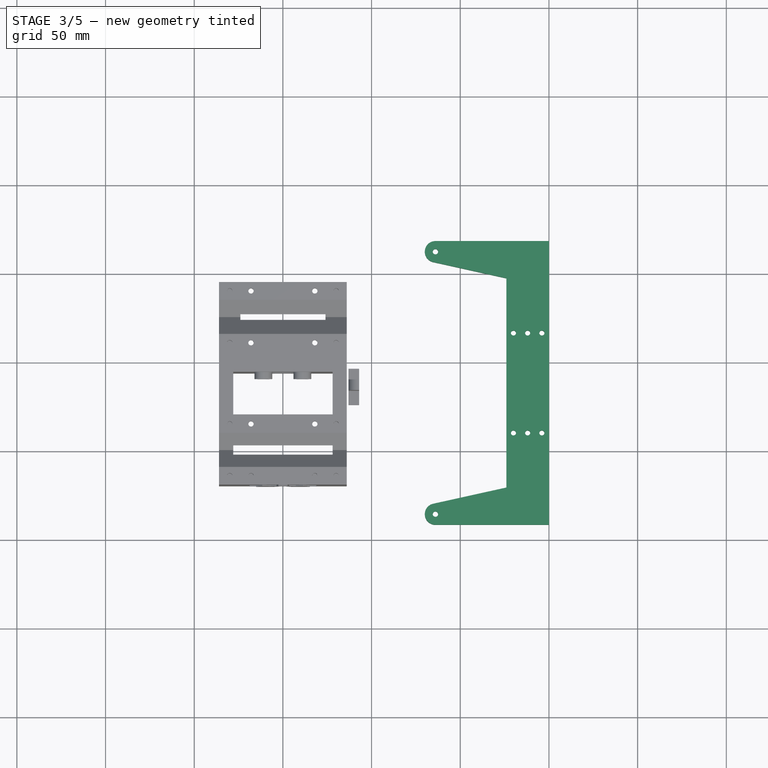
[diagram: stage 3 of 5 — top view after this stage's code; geometry added in this stage tinted green]
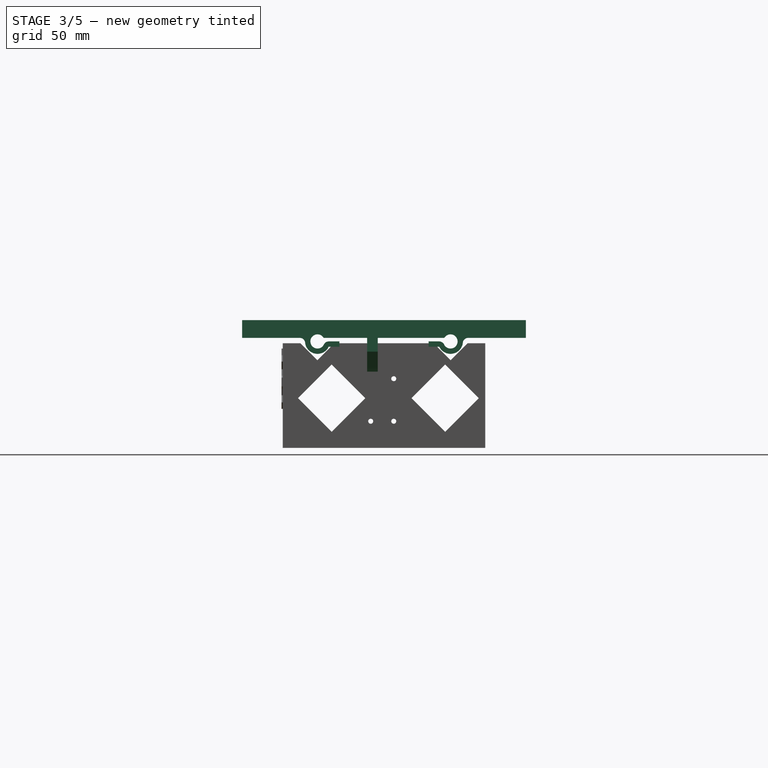
[diagram: stage 3 of 5 — right view after this stage's code; geometry added in this stage tinted green]
FEATURE [App::DocumentObjectGroup] Group002  label="bases"
  Group = -> [Revolution004,Revolution005,Pad007,Revolution,Revolution006,Group]
FEATURE [App::DocumentObjectGroup] Group001  label="RodsNBearings"
  Group = -> [Compound,Revolution007,Revolution008,Compound003,Compound002,Revolution009,Revolution010,Group002]
FEATURE [Part::Feature] Pocket006001  label="bearingclip_copy001"
  Placement = pos=(12,0,0) rot=(0.57735,0.57735,0.57735;2.0944rad)
  shape: bbox 24 x 39.21 x 10.04 mm, 18 faces (baked)
FEATURE [Part::Feature] Pocket006002  label="bearingclip_copy002"
  Placement = pos=(-36,0,0) rot=(0.57735,0.57735,0.57735;2.0944rad)
  shape: bbox 24 x 39.21 x 10.04 mm, 18 faces (baked)
FEATURE [Part::Feature] Pocket006003  label="bearingclip_copy003"
  Placement = pos=(-36,75,0) rot=(0.57735,0.57735,0.57735;2.0944rad)
  shape: bbox 24 x 39.21 x 10.04 mm, 18 faces (baked)
FEATURE [Part::Feature] Pocket006004  label="bearingclip_copy004"
  Placement = pos=(12,75,0) rot=(0.57735,0.57735,0.57735;2.0944rad)
  shape: bbox 24 x 39.21 x 10.04 mm, 18 faces (baked)
FEATURE [App::DocumentObjectGroup] Group003  label="bearingclips"
  Group = -> [Pocket006,Pad010,Pocket006001,Pocket006002,Pocket006003,Pocket006004]
FEATURE [PartDesign::Pad] Pad011
  Length = 10
  Length2 = 100
  Placement = pos=(0,0,2) rot=(0,0,1;0rad)
  Sketch = -> Sketch016
  Type = 0
FEATURE [Sketcher::SketchObject] Sketch018
  Placement = pos=(-150,0,2) rot=(0.57735,-0.57735,-0.57735;2.0944rad)
  Support = -> Pad011 [Face7]
  sketch-geometry (3):
    g0: LineSegment [constr] StartX=0 StartY=-2 StartZ=0 EndX=-75 EndY=-2 EndZ=0
    g1: Circle CenterX=-75 CenterY=-2 CenterZ=0 NormalX=0 NormalY=0 NormalZ=1 Radius=4
    g2: Circle CenterX=0 CenterY=-2 CenterZ=0 NormalX=0 NormalY=0 NormalZ=1 Radius=4
  constraints (8):
    c: PointOnObject(g0,g-2)
    c: Horizontal(g0)
    c: Distance(g0) = 75
    c: DistanceY(g0) = -2
    c: Coincident(g1,g0)
    c: Radius(g1) = 4
    c: Coincident(g2,g0)
    c: Equal(g2,g1)
FEATURE [PartDesign::Pocket] Pocket006005
  Length = 5
  Placement = pos=(0,0,2) rot=(0,0,1;0rad)
  Sketch = -> Sketch018
  Type = 1
FEATURE [Sketcher::SketchObject] Sketch019
  Placement = pos=(-150,0,2) rot=(0.57735,-0.57735,-0.57735;2.0944rad)
  Support = -> Pocket006005 [Face6]
  sketch-geometry (21):
    g0: LineSegment [constr] StartX=0 StartY=-2 StartZ=0 EndX=-75 EndY=-2 EndZ=0
    g1: ArcOfCircle CenterX=0 CenterY=-2 CenterZ=0 NormalX=0 NormalY=0 NormalZ=1 Radius=4 StartAngle=3.58451 EndAngle=6.80678
    g2: LineSegment StartX=3.4641 StartY=0 StartZ=0 EndX=9.94987 EndY=0 EndZ=0
    g3: ArcOfCircle CenterX=9.94987 CenterY=-3 CenterZ=0 NormalX=0 NormalY=0 NormalZ=1 Radius=3 StartAngle=1.5708 EndAngle=3.04143
    g4: ArcOfCircle CenterX=0 CenterY=-2 CenterZ=0 NormalX=0 NormalY=0 NormalZ=1 Radius=7 StartAngle=3.5845 EndAngle=6.18302
    g5: ArcOfCircle CenterX=-6.32456 CenterY=-5 CenterZ=0 NormalX=0 NormalY=0 NormalZ=1 Radius=3 StartAngle=0.442907 EndAngle=1.57079
    g6: LineSegment StartX=-6.32456 StartY=-5 StartZ=0 EndX=-12.3246 EndY=-5 EndZ=0
    g7: LineSegment StartX=-12.3246 StartY=-5 StartZ=0 EndX=-12.3246 EndY=-2 EndZ=0
    g8: LineSegment StartX=-12.3246 StartY=-2 StartZ=0 EndX=-6.32455 EndY=-2 EndZ=0
    g9: ArcOfCircle CenterX=-75 CenterY=-2 CenterZ=0 NormalX=0 NormalY=0 NormalZ=1 Radius=4 StartAngle=2.61799 EndAngle=5.84027
    g10: LineSegment StartX=-68.6754 StartY=-2 StartZ=0 EndX=-62.6754 EndY=-2 EndZ=0
    g11: LineSegment StartX=-62.6754 StartY=-2 StartZ=0 EndX=-62.6754 EndY=-5 EndZ=0
    g12: LineSegment StartX=-62.6754 StartY=-5 StartZ=0 EndX=-68.6754 EndY=-5 EndZ=0
    g13: ArcOfCircle CenterX=-68.6754 CenterY=-5 CenterZ=0 NormalX=0 NormalY=0 NormalZ=1 Radius=3 StartAngle=1.5708 EndAngle=2.69868
    g14: ArcOfCircle CenterX=-75 CenterY=-2 CenterZ=0 NormalX=0 NormalY=0 NormalZ=1 Radius=7 StartAngle=3.24176 EndAngle=5.84027
    g15: ArcOfCircle CenterX=-84.9499 CenterY=-3 CenterZ=0 NormalX=0 NormalY=0 NormalZ=1 Radius=3 StartAngle=0.100167 EndAngle=1.5708
    g16: LineSegment StartX=-84.9499 StartY=0 StartZ=0 EndX=-78.4641 EndY=0 EndZ=0
    g17: LineSegment StartX=-34 StartY=0 StartZ=0 EndX=-31.0144 EndY=0 EndZ=0
    g18: LineSegment StartX=-31.0144 StartY=0 StartZ=0 EndX=-31.0144 EndY=-2.19958 EndZ=0
    g19: LineSegment StartX=-31.0144 StartY=-2.19958 StartZ=0 EndX=-34 EndY=-2.19958 EndZ=0
    g20: LineSegment StartX=-34 StartY=-2.19958 StartZ=0 EndX=-34 EndY=0 EndZ=0
  constraints (64):
    c: PointOnObject(g0,g-2)
    c: Horizontal(g0)
    c: Distance(g0) = 75
    c: Coincident(g1,g0)
    c: PointOnObject(g1,g-1)
    c: Coincident(g2,g1)
    c: Horizontal(g2)
    c: Coincident(g3,g2)
    c: Tangent(g3,g2)
    c: Radius(g3) = 3
    c: Coincident(g4,g0)
    c: Coincident(g4,g3)
    c: Radius(g4) = 7
    c: Coincident(g5,g4)
    c: Coincident(g5,g1)
    c: Tangent(g5,g1)
    c: Coincident(g6,g7)
    c: Coincident(g7,g8)
    c: Horizontal(g6)
    c: Horizontal(g8)
    c: Vertical(g7)
    c: Coincident(g6,g4)
    c: Coincident(g5,g8)
    c: Distance(g6) = 6
    c: Tangent(g3,g4)
    c: Coincident(g9,g0)
    c: PointOnObject(g9,g-1)
    c: Radius(g9) = 4
    c: Coincident(g10,g11)
    c: Coincident(g11,g12)
    c: Horizontal(g10)
    c: Horizontal(g12)
    c: Vertical(g11)
    c: Coincident(g13,g12)
    c: Coincident(g13,g9)
    c: Coincident(g13,g10)
    c: Distance(g12) = 6
    c: Tangent(g13,g9)
    c: Coincident(g14,g0)
    c: Coincident(g14,g12)
    c: Radius(g14) = 7
    c: Coincident(g15,g14)
    c: Tangent(g15,g14)
    c: Radius(g15) = 3
    c: Coincident(g16,g15)
    c: Coincident(g16,g9)
    c: Horizontal(g16)
    c: Tangent(g15,g16)
    c: Tangent(g10,g13)
    c: DistanceY(g10) = -2
    c: Tangent(g5,g8)
    c: Radius(g1) = 4
    c: DistanceY(g0) = -2
    c: DistanceY(g7) = -2
    c: Coincident(g17,g18)
    c: Coincident(g18,g19)
    c: Coincident(g19,g20)
    c: Coincident(g20,g17)
    c: Horizontal(g17)
    c: Horizontal(g19)
    c: Vertical(g18)
    c: Vertical(g20)
    c: PointOnObject(g17,g-1)
    c: DistanceX(g17) = -34
FEATURE [PartDesign::Pad] Pad012
  Length = 24
  Length2 = 100
  Placement = pos=(0,0,2) rot=(0,0,1;0rad)
  Reversed = true
  Sketch = -> Sketch019
  Type = 0
FEATURE [Sketcher::SketchObject] Sketch020
  ExternalGeometry = -> [Pad012]
  Placement = pos=(0,34,2) rot=(0,0.707107,0.707107;3.14159rad)
  Support = -> Pad012 [Face29]
  sketch-geometry (6):
    g0: Circle CenterX=135 CenterY=-10 CenterZ=0 NormalX=0 NormalY=0 NormalZ=1 Radius=2.4
    g1: LineSegment StartX=150 StartY=0 StartZ=0 EndX=126 EndY=0 EndZ=0
    g2: LineSegment StartX=126 StartY=0 StartZ=0 EndX=126 EndY=-9.99997 EndZ=0
    g3: ArcOfCircle CenterX=135 CenterY=-10 CenterZ=0 NormalX=0 NormalY=0 NormalZ=1 Radius=9.0004 StartAngle=3.14159 EndAngle=5.49779
    g4: LineSegment StartX=141.364 StartY=-16.3642 StartZ=0 EndX=150 EndY=-7.72889 EndZ=0
    g5: LineSegment StartX=150 StartY=-7.72889 StartZ=0 EndX=150 EndY=0 EndZ=0
  constraints (15):
    c: DistanceX(g0) = 135
    c: DistanceY(g0) = -10
    c: Coincident(g-3,g1)
    c: Coincident(g1,g-3)
    c: Coincident(g1,g2)
    c: Vertical(g2)
    c: Coincident(g3,g0)
    c: Coincident(g3,g2)
    c: Tangent(g3,g2)
    c: Radius(g0) = 2.4
    c: Tangent(g3,g4) = -1.5708
    c: Coincident(g4,g5)
    c: Coincident(g5,g1)
    c: Vertical(g5)
    c: Angle(g4) = 0.785398
FEATURE [PartDesign::Pad] Pad013
  Length = 6
  Length2 = 100
  Placement = pos=(0,0,2) rot=(0,0,1;0rad)
  Reversed = true
  Sketch = -> Sketch020
  Type = 0
FEATURE [Sketcher::SketchObject] Sketch021
  ExternalGeometry = -> [Pad013]
  Placement = pos=(0,0,-3) rot=(1,0,0;3.14159rad)
  Support = -> Pad013 [Face4]
  sketch-geometry (18):
    g0: LineSegment [constr] StartX=-150 StartY=-12.3246 StartZ=0 EndX=-150 EndY=-9.32456 EndZ=0
    g1: LineSegment [constr] StartX=-150 StartY=-9.32456 StartZ=0 EndX=-146 EndY=-9.32456 EndZ=0
    g2: LineSegment [constr] StartX=-146 StartY=-9.32456 StartZ=0 EndX=-138 EndY=-9.32456 EndZ=0
    g3: LineSegment [constr] StartX=-138 StartY=-9.32456 StartZ=0 EndX=-130 EndY=-9.32456 EndZ=0
    g4: LineSegment [constr] StartX=-130 StartY=-9.32456 StartZ=0 EndX=-126 EndY=-9.32456 EndZ=0
    g5: LineSegment [constr] StartX=-126 StartY=-9.32456 StartZ=0 EndX=-126 EndY=-12.3246 EndZ=0
    g6: Circle CenterX=-146 CenterY=-9.32456 CenterZ=0 NormalX=0 NormalY=0 NormalZ=1 Radius=1.45
    g7: Circle CenterX=-138 CenterY=-9.32456 CenterZ=0 NormalX=0 NormalY=0 NormalZ=1 Radius=1.45
    g8: Circle CenterX=-130 CenterY=-9.32456 CenterZ=0 NormalX=0 NormalY=0 NormalZ=1 Radius=1.45
    g9: LineSegment [constr] StartX=-150 StartY=-62.6754 StartZ=0 EndX=-150 EndY=-65.6754 EndZ=0
    g10: LineSegment [constr] StartX=-150 StartY=-65.6754 StartZ=0 EndX=-146 EndY=-65.6754 EndZ=0
    g11: LineSegment [constr] StartX=-146 StartY=-65.6754 StartZ=0 EndX=-138 EndY=-65.6754 EndZ=0
    g12: LineSegment [constr] StartX=-138 StartY=-65.6754 StartZ=0 EndX=-130 EndY=-65.6754 EndZ=0
    g13: LineSegment [constr] StartX=-130 StartY=-65.6754 StartZ=0 EndX=-126 EndY=-65.6754 EndZ=0
    g14: LineSegment [constr] StartX=-126 StartY=-65.6754 StartZ=0 EndX=-126 EndY=-62.6754 EndZ=0
    g15: Circle CenterX=-146 CenterY=-65.6754 CenterZ=0 NormalX=0 NormalY=0 NormalZ=1 Radius=1.45
    g16: Circle CenterX=-138 CenterY=-65.6754 CenterZ=0 NormalX=0 NormalY=0 NormalZ=1 Radius=1.45
    g17: Circle CenterX=-130 CenterY=-65.6754 CenterZ=0 NormalX=0 NormalY=0 NormalZ=1 Radius=1.45
  constraints (46):
    c: Coincident(g-3,g0)
    c: Vertical(g0)
    c: Coincident(g0,g1)
    c: Horizontal(g1)
    c: Coincident(g1,g2)
    c: Horizontal(g2)
    c: Coincident(g2,g3)
    c: Horizontal(g3)
    c: Coincident(g3,g4)
    c: Horizontal(g4)
    c: Coincident(g4,g5)
    c: Coincident(g5,g-3)
    c: Vertical(g5)
    c: Equal(g1,g4)
    c: Equal(g3,g2)
    c: Distance(g2) = 8
    c: Distance(g0) = 3
    c: Coincident(g6,g1)
    c: Coincident(g7,g2)
    c: Coincident(g8,g3)
    c: Equal(g8,g7)
    c: Equal(g7,g6)
    c: Radius(g6) = 1.45
    c: Coincident(g-4,g9)
    c: Vertical(g9)
    c: Coincident(g9,g10)
    c: Horizontal(g10)
    c: Coincident(g10,g11)
    c: Horizontal(g11)
    c: Coincident(g11,g12)
    c: Horizontal(g12)
    c: Coincident(g12,g13)
    c: Horizontal(g13)
    c: Coincident(g13,g14)
    c: Coincident(g14,g-4)
    c: Vertical(g14)
    c: Coincident(g15,g10)
    c: Coincident(g16,g11)
    c: Coincident(g17,g12)
    c: Equal(g17,g16)
    c: Equal(g16,g15)
    c: Equal(g11,g12)
    c: Equal(g13,g10)
    c: Distance(g11) = 8
    c: Distance(g9) = 3
    c: Radius(g15) = 1.45
FEATURE [PartDesign::Pocket] Pocket006006
  Length = 5
  Placement = pos=(0,0,2) rot=(0,0,1;0rad)
  Sketch = -> Sketch021
  Type = 1
FEATURE [Part::Mirroring] Part__Mirroring  label="Pocket006006 (Mirror #1)"
  Base = (0,0,0)
  Normal = (1,0,0)
  Source = -> Pocket006006
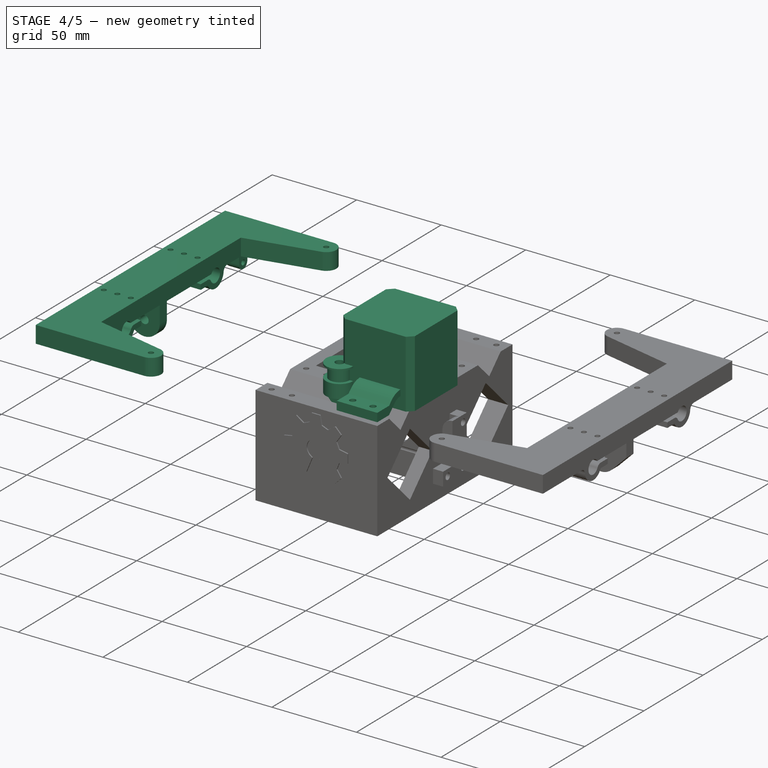
[diagram: stage 4 of 5 — iso view after this stage's code; geometry added in this stage tinted green]
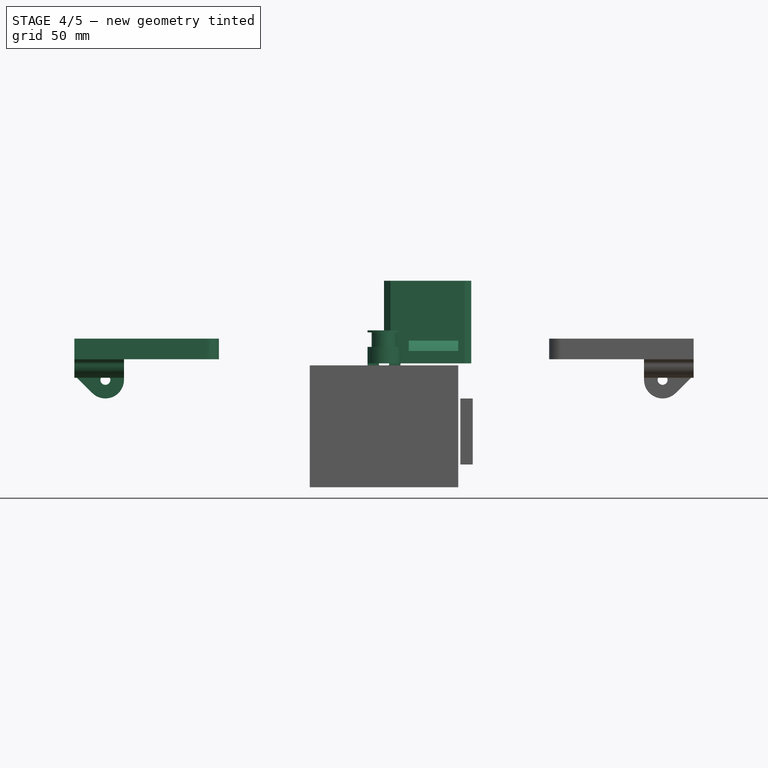
[diagram: stage 4 of 5 — front view after this stage's code; geometry added in this stage tinted green]
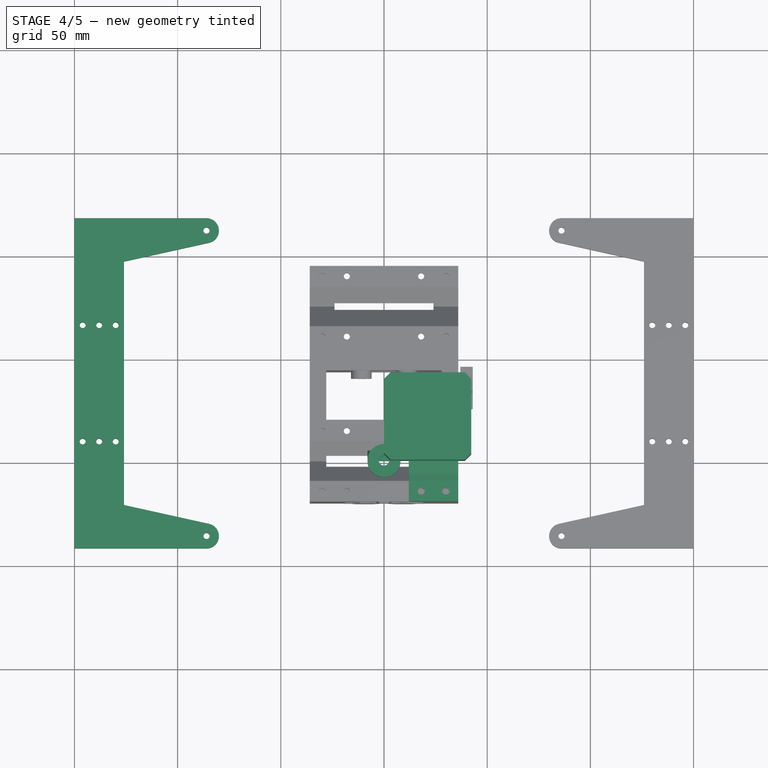
[diagram: stage 4 of 5 — top view after this stage's code; geometry added in this stage tinted green]
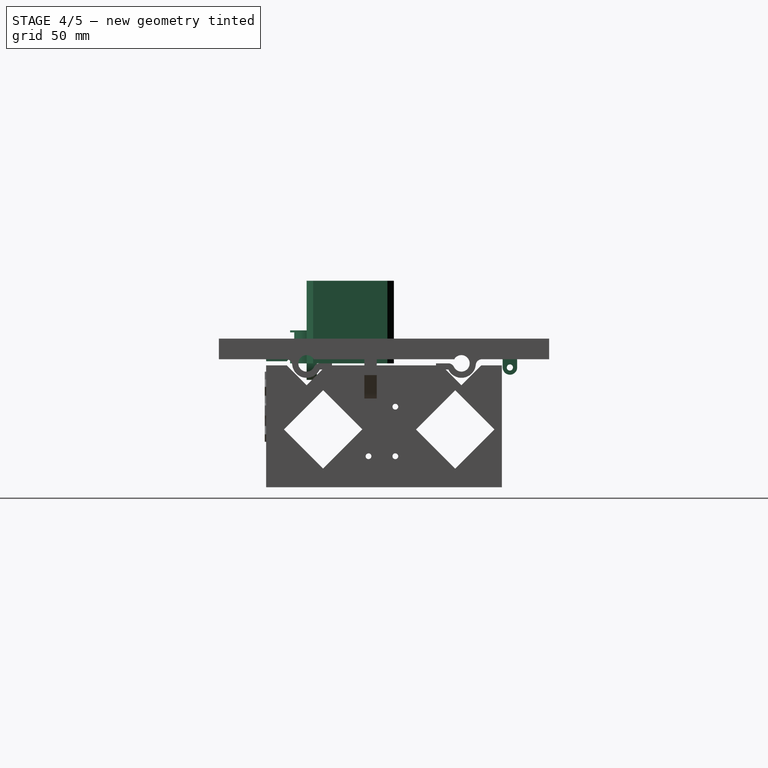
[diagram: stage 4 of 5 — right view after this stage's code; geometry added in this stage tinted green]
FEATURE [Sketcher::SketchObject] Sketch001  label="Motor"
  sketch-geometry (19):
    g0: LineSegment StartX=3.15 StartY=0 StartZ=0 EndX=0 EndY=3.15 EndZ=0
    g1: LineSegment StartX=0 StartY=3.15 StartZ=0 EndX=0 EndY=39.15 EndZ=0
    g2: LineSegment StartX=0 StartY=39.15 StartZ=0 EndX=3.15 EndY=42.3 EndZ=0
    g3: LineSegment StartX=3.15 StartY=42.3 StartZ=0 EndX=39.15 EndY=42.3 EndZ=0
    g4: LineSegment StartX=39.15 StartY=42.3 StartZ=0 EndX=42.3 EndY=39.15 EndZ=0
    g5: LineSegment StartX=42.3 StartY=39.15 StartZ=0 EndX=42.3 EndY=3.15 EndZ=0
    g6: LineSegment StartX=42.3 StartY=3.15 StartZ=0 EndX=39.15 EndY=0 EndZ=0
    g7: LineSegment StartX=39.15 StartY=0 StartZ=0 EndX=3.15 EndY=0 EndZ=0
    g8: LineSegment [constr] StartX=1.575 StartY=1.575 StartZ=0 EndX=40.725 EndY=40.725 EndZ=0
    g9: LineSegment [constr] StartX=1.575 StartY=40.725 StartZ=0 EndX=40.725 EndY=1.575 EndZ=0
    g10: Circle [constr] CenterX=21.15 CenterY=21.15 CenterZ=0 NormalX=0 NormalY=0 NormalZ=1 Radius=11
    g11: Circle [constr] CenterX=21.15 CenterY=21.15 CenterZ=0 NormalX=0 NormalY=0 NormalZ=1 Radius=2.5
    g12: Circle [constr] CenterX=5.65 CenterY=36.65 CenterZ=0 NormalX=0 NormalY=0 NormalZ=1 Radius=1.5
    g13: Circle [constr] CenterX=36.65 CenterY=36.65 CenterZ=0 NormalX=0 NormalY=0 NormalZ=1 Radius=1.5
    g14: Circle [constr] CenterX=36.65 CenterY=5.65 CenterZ=0 NormalX=0 NormalY=0 NormalZ=1 Radius=1.5
    g15: Circle [constr] CenterX=5.65 CenterY=5.65 CenterZ=0 NormalX=0 NormalY=0 NormalZ=1 Radius=1.5
    g16: LineSegment [constr] StartX=5.65 StartY=36.65 StartZ=0 EndX=36.65 EndY=36.65 EndZ=0
    g17: LineSegment [constr] StartX=36.65 StartY=36.65 StartZ=0 EndX=36.65 EndY=5.65 EndZ=0
    g18: LineSegment [constr] StartX=36.65 StartY=5.65 StartZ=0 EndX=5.65 EndY=5.65 EndZ=0
  constraints (54):
    c: Coincident(g0,g1)
    c: Vertical(g1)
    c: Coincident(g1,g2)
    c: Coincident(g2,g3)
    c: Horizontal(g3)
    c: Coincident(g3,g4)
    c: Coincident(g4,g5)
    c: Vertical(g5)
    c: Coincident(g5,g6)
    c: Coincident(g6,g7)
    c: Coincident(g7,g0)
    c: Horizontal(g7)
    c: Parallel(g0,g4)
    c: Perpendicular(g6,g4)
    c: Angle(g2) = 0.785398
    c: Equal(g3,g1)
    c: Equal(g1,g5)
    c: Equal(g5,g7)
    c: Equal(g2,g4)
    c: Distance(g1,g4) = 42.3
    c: Distance(g3) = 36
    c: PointOnObject(g0,g-2)
    c: PointOnObject(g0,g-1)
    c: PointOnObject(g8,g0)
    c: PointOnObject(g8,g4)
    c: Angle(g8) = 0.785398
    c: Symmetric(g0,g0,g8)
    c: PointOnObject(g9,g2)
    c: PointOnObject(g9,g6)
    c: Perpendicular(g9,g8)
    c: Symmetric(g5,g6,g9)
    c: PointOnObject(g10,g9)
    c: PointOnObject(g10,g8)
    c: Radius(g10) = 11
    c: Coincident(g11,g10)
    c: Radius(g11) = 2.5
    c: PointOnObject(g12,g9)
    c: Radius(g12) = 1.5
    c: PointOnObject(g13,g8)
    c: PointOnObject(g14,g9)
    c: PointOnObject(g15,g8)
    c: Equal(g15,g14)
    c: Equal(g14,g13)
    c: Equal(g13,g12)
    c: Coincident(g16,g12)
    c: Coincident(g16,g13)
    c: Horizontal(g16)
    c: Coincident(g17,g13)
    c: Coincident(g17,g14)
    c: Vertical(g17)
    c: Coincident(g18,g14)
    c: Coincident(g18,g15)
    c: Horizontal(g18)
    c: Distance(g16) = 31
FEATURE [PartDesign::Pad] Pad
  Length = 40
  Length2 = 100
  Sketch = -> Sketch001
  Type = 0
FEATURE [Part::Feature] Pad004  label="NEMA_17_copy001"
  Placement = pos=(0,0,0) rot=(1,0,0;1.5708rad)
  shape: bbox 42.3 x 71 x 42.3 mm, 22 faces (baked)
FEATURE [Sketcher::SketchObject] Sketch005
  Placement = pos=(0,0,0) rot=(0.57735,0.57735,0.57735;2.0944rad)
  sketch-geometry (8):
    g0: LineSegment StartX=2.5 StartY=16 StartZ=0 EndX=8 EndY=16 EndZ=0
    g1: LineSegment StartX=8 StartY=16 StartZ=0 EndX=8 EndY=15 EndZ=0
    g2: LineSegment StartX=8 StartY=15 StartZ=0 EndX=6 EndY=15 EndZ=0
    g3: LineSegment StartX=6 StartY=15 StartZ=0 EndX=6 EndY=8 EndZ=0
    g4: LineSegment StartX=6 StartY=8 StartZ=0 EndX=8 EndY=8 EndZ=0
    g5: LineSegment StartX=8 StartY=8 StartZ=0 EndX=8 EndY=0 EndZ=0
    g6: LineSegment StartX=8 StartY=0 StartZ=0 EndX=2.5 EndY=0 EndZ=0
    g7: LineSegment StartX=2.5 StartY=0 StartZ=0 EndX=2.5 EndY=16 EndZ=0
  constraints (24):
    c: Horizontal(g0)
    c: Coincident(g0,g1)
    c: Vertical(g1)
    c: Coincident(g1,g2)
    c: Horizontal(g2)
    c: Coincident(g2,g3)
    c: Vertical(g3)
    c: Coincident(g3,g4)
    c: Horizontal(g4)
    c: Coincident(g4,g5)
    c: Vertical(g5)
    c: Coincident(g5,g6)
    c: Horizontal(g6)
    c: Coincident(g6,g7)
    c: Coincident(g7,g0)
    c: Vertical(g7)
    c: PointOnObject(g6,g-1)
    c: DistanceX(g6) = 2.5
    c: DistanceY(g0) = 16
    c: Distance(g1) = 1
    c: DistanceX(g2) = 6
    c: DistanceX(g0) = 8
    c: Equal(g4,g2)
    c: Distance(g3) = 7
FEATURE [PartDesign::Revolution] Revolution002  label="16Tpulley"
  Angle = 360
  Axis = (0,0,1)
  Base = (0,0,0)
  Placement = pos=(0,0,0) rot=(0.57735,0.57735,0.57735;2.0944rad)
  ReferenceAxis = -> Sketch005 [V_Axis]
  Reversed = true
  Sketch = -> Sketch005
FEATURE [Sketcher::SketchObject] Sketch006
  Placement = pos=(0,0,0) rot=(0.57735,0.57735,0.57735;2.0944rad)
  sketch-geometry (4):
    g0: LineSegment StartX=0 StartY=2.5 StartZ=0 EndX=5 EndY=2.5 EndZ=0
    g1: LineSegment StartX=5 StartY=2.5 StartZ=0 EndX=5 EndY=8 EndZ=0
    g2: LineSegment StartX=5 StartY=8 StartZ=0 EndX=0 EndY=8 EndZ=0
    g3: LineSegment StartX=0 StartY=8 StartZ=0 EndX=0 EndY=2.5 EndZ=0
  constraints (12):
    c: Coincident(g0,g1)
    c: Coincident(g1,g2)
    c: Coincident(g2,g3)
    c: Coincident(g3,g0)
    c: Horizontal(g0)
    c: Horizontal(g2)
    c: Vertical(g1)
    c: Vertical(g3)
    c: PointOnObject(g0,g-2)
    c: DistanceY(g0) = 2.5
    c: DistanceY(g2) = 8
    c: Distance(g2) = 5
FEATURE [PartDesign::Revolution] Revolution006  label="625zz"
  Angle = 360
  Axis = (0,1,0)
  Base = (0,0,0)
  Placement = pos=(0,0,0) rot=(0.57735,0.57735,0.57735;2.0944rad)
  ReferenceAxis = -> Sketch006 [H_Axis]
  Sketch = -> Sketch006
FEATURE [Sketcher::SketchObject] Sketch013
  Placement = pos=(12,0,0) rot=(0.57735,0.57735,0.57735;2.0944rad)
  sketch-geometry (29):
    g0: LineSegment [constr] StartX=0 StartY=0 StartZ=0 EndX=75 EndY=0 EndZ=0
    g1: LineSegment [constr] StartX=9.6066 StartY=-1 StartZ=0 EndX=0 EndY=-10.6066 EndZ=0
    g2: LineSegment [constr] StartX=0 StartY=-10.6066 StartZ=0 EndX=-9.6066 EndY=-1 EndZ=0
    g3: LineSegment [constr] StartX=-9.6066 StartY=-1 StartZ=0 EndX=-19.6066 EndY=-1 EndZ=0
    g4: LineSegment [constr] StartX=-19.6066 StartY=-1 StartZ=0 EndX=-19.6066 EndY=-60 EndZ=0
    g5: LineSegment [constr] StartX=94.6066 StartY=-60 StartZ=0 EndX=94.6066 EndY=-1 EndZ=0
    g6: LineSegment [constr] StartX=94.6066 StartY=-1 StartZ=0 EndX=84.6066 EndY=-1 EndZ=0
    g7: LineSegment [constr] StartX=84.6066 StartY=-1 StartZ=0 EndX=75 EndY=-10.6066 EndZ=0
    g8: LineSegment [constr] StartX=75 StartY=-10.6066 StartZ=0 EndX=65.3934 EndY=-1 EndZ=0
    g9: LineSegment [constr] StartX=65.3934 StartY=-1 StartZ=0 EndX=9.6066 EndY=-1 EndZ=0
    g10: LineSegment [constr] StartX=-9.6066 StartY=-1 StartZ=0 EndX=9.6066 EndY=-1 EndZ=0
    g11: LineSegment [constr] StartX=84.6066 StartY=-1 StartZ=0 EndX=65.3934 EndY=-1 EndZ=0
    g12: Circle [constr] CenterX=0 CenterY=0 CenterZ=0 NormalX=0 NormalY=0 NormalZ=1 Radius=7.5
    g13: Circle [constr] CenterX=75 CenterY=0 CenterZ=0 NormalX=0 NormalY=0 NormalZ=1 Radius=7.5
    g14: LineSegment [constr] StartX=-19.6066 StartY=-60 StartZ=0 EndX=94.6066 EndY=-60 EndZ=0
    g15: LineSegment StartX=-19.6066 StartY=1 StartZ=0 EndX=-9.6066 EndY=1 EndZ=0
    g16: LineSegment StartX=-9.6066 StartY=1 StartZ=0 EndX=-5.3033 EndY=5.3033 EndZ=0
    g17: LineSegment StartX=5.3033 StartY=5.3033 StartZ=0 EndX=9.6066 EndY=1 EndZ=0
    g18: LineSegment StartX=9.6066 StartY=1 StartZ=0 EndX=19.6066 EndY=1 EndZ=0
    g19: LineSegment StartX=19.6066 StartY=1 StartZ=0 EndX=19.6066 EndY=6 EndZ=0
    g20: LineSegment StartX=19.6066 StartY=6 StartZ=0 EndX=9.6066 EndY=6 EndZ=0
    g21: LineSegment StartX=9.6066 StartY=6 StartZ=0 EndX=7.8033 EndY=7.8033 EndZ=0
    g22: LineSegment StartX=-7.8033 StartY=7.8033 StartZ=0 EndX=-9.6066 EndY=6 EndZ=0
    g23: LineSegment StartX=-9.6066 StartY=6 StartZ=0 EndX=-19.6066 EndY=6 EndZ=0
    g24: LineSegment StartX=-19.6066 StartY=6 StartZ=0 EndX=-19.6066 EndY=1 EndZ=0
    g25: LineSegment [constr] StartX=-9.6066 StartY=1 StartZ=0 EndX=9.6066 EndY=1 EndZ=0
    g26: LineSegment [constr] StartX=-9.6066 StartY=6 StartZ=0 EndX=9.6066 EndY=6 EndZ=0
    g27: ArcOfCircle CenterX=0 CenterY=0 CenterZ=0 NormalX=0 NormalY=0 NormalZ=1 Radius=7.5 StartAngle=0.785398 EndAngle=2.35619
    g28: ArcOfCircle CenterX=0 CenterY=0 CenterZ=0 NormalX=0 NormalY=0 NormalZ=1 Radius=11.0355 StartAngle=0.785398 EndAngle=2.35619
  constraints (80):
    c: Coincident(g0,g-1)
    c: PointOnObject(g0,g-1)
    c: Distance(g0) = 75
    c: Coincident(g1,g2)
    c: Coincident(g2,g3)
    c: Coincident(g3,g4)
    c: Vertical(g5)
    c: Coincident(g5,g6)
    c: Coincident(g6,g7)
    c: Coincident(g7,g8)
    c: Coincident(g8,g9)
    c: Coincident(g9,g1)
    c: Horizontal(g9)
    c: Perpendicular(g7,g8)
    c: Perpendicular(g2,g1)
    c: Horizontal(g3)
    c: Horizontal(g6)
    c: Coincident(g10,g2)
    c: Coincident(g10,g1)
    c: Horizontal(g10)
    c: Coincident(g11,g6)
    c: Coincident(g11,g8)
    c: Horizontal(g11)
    c: Equal(g1,g2)
    c: Coincident(g12,g-1)
    c: Radius(g12) = 7.5
    c: Tangent(g2,g12)
    c: Tangent(g1,g12)
    c: Vertical(g4)
    c: DistanceY(g3) = -1
    c: Distance(g3) = 10
    c: Coincident(g13,g0)
    c: Tangent(g7,g13)
    c: Tangent(g8,g13)
    c: Equal(g7,g8)
    c: Distance(g6) = 10
    c: Distance(g5) = 59
    c: Coincident(g14,g5)
    c: Horizontal(g14)
    c: Equal(g4,g5)
    c: Coincident(g14,g4)
    c: Horizontal(g15)
    c: Coincident(g15,g16)
    c: Coincident(g17,g18)
    c: Horizontal(g18)
    c: Coincident(g18,g19)
    c: Vertical(g19)
    c: Coincident(g19,g20)
    c: Horizontal(g20)
    c: Coincident(g20,g21)
    c: Coincident(g22,g23)
    c: Coincident(g23,g24)
    c: Coincident(g24,g15)
    c: Vertical(g24)
    c: Horizontal(g23)
    c: Coincident(g25,g15)
    c: Coincident(g25,g17)
    c: Horizontal(g25)
    c: Coincident(g26,g22)
    c: Coincident(g26,g20)
    c: Horizontal(g26)
    c: Perpendicular(g21,g22)
    c: Perpendicular(g16,g17)
    c: DistanceY(g15) = 1
    c: Tangent(g16,g12)
    c: Tangent(g17,g12)
    c: Equal(g15,g3)
    c: Distance(g19) = 5
    c: Equal(g18,g15)
    c: Equal(g16,g17)
    c: Equal(g21,g22)
    c: Equal(g15,g23)
    c: Equal(g13,g12)
    c: Tangent(g16,g27) = 1.5708
    c: Tangent(g17,g27) = 1.5708
    c: Tangent(g21,g28) = -1.5708
    c: Tangent(g22,g28) = -1.5708
    c: PointOnObject(g28,g-2)
    c: Radius(g27) = 7.5
    c: Coincident(g28,g-1)
FEATURE [PartDesign::Pad] Pad010
  Length = 24
  Length2 = 100
  Placement = pos=(12,0,0) rot=(0.57735,0.57735,0.57735;2.0944rad)
  Sketch = -> Sketch013
  Type = 0
FEATURE [Sketcher::SketchObject] Sketch017
  ExternalGeometry = -> [Pad010]
  Placement = pos=(12,0,6) rot=(0,0,-1;1.5708rad)
  Support = -> Pad010 [Face8]
  sketch-geometry (8):
    g0: LineSegment [constr] StartX=-14.6066 StartY=18 StartZ=0 EndX=14.6066 EndY=18 EndZ=0
    g1: LineSegment [constr] StartX=14.6066 StartY=18 StartZ=0 EndX=14.6066 EndY=6 EndZ=0
    g2: LineSegment [constr] StartX=14.6066 StartY=6 StartZ=0 EndX=-14.6066 EndY=6 EndZ=0
    g3: LineSegment [constr] StartX=-14.6066 StartY=6 StartZ=0 EndX=-14.6066 EndY=18 EndZ=0
    g4: Circle CenterX=-14.6066 CenterY=18 CenterZ=0 NormalX=0 NormalY=0 NormalZ=1 Radius=1.75
    g5: Circle CenterX=-14.6066 CenterY=6 CenterZ=0 NormalX=0 NormalY=0 NormalZ=1 Radius=1.75
    g6: Circle CenterX=14.6066 CenterY=18 CenterZ=0 NormalX=0 NormalY=0 NormalZ=1 Radius=1.75
    g7: Circle CenterX=14.6066 CenterY=6 CenterZ=0 NormalX=0 NormalY=0 NormalZ=1 Radius=1.75
  constraints (20):
    c: Coincident(g0,g1)
    c: Coincident(g1,g2)
    c: Coincident(g2,g3)
    c: Coincident(g3,g0)
    c: Horizontal(g0)
    c: Horizontal(g2)
    c: Vertical(g1)
    c: Vertical(g3)
    c: Distance(g3) = 12
    c: DistanceX(g-3,g0) = -5
    c: DistanceY(g0,g-3) = 6
    c: DistanceX(g0,g-4) = -5
    c: Coincident(g4,g0)
    c: Coincident(g5,g2)
    c: Coincident(g6,g0)
    c: Coincident(g7,g1)
    c: Equal(g7,g6)
    c: Equal(g6,g4)
    c: Equal(g4,g5)
    c: Radius(g7) = 1.75
FEATURE [PartDesign::Pocket] Pocket006
  Length = 5
  Placement = pos=(12,0,0) rot=(0.57735,0.57735,0.57735;2.0944rad)
  Sketch = -> Sketch017
  Type = 1
FEATURE [Sketcher::SketchObject] Sketch023
  Placement = pos=(-126,0,2) rot=(0.57735,0.57735,0.57735;2.0944rad)
  Support = -> Pocket006006 [Face4]
  sketch-geometry (7):
    g0: LineSegment StartX=95 StartY=0 StartZ=0 EndX=102 EndY=0 EndZ=0
    g1: LineSegment StartX=102 StartY=0 StartZ=0 EndX=102 EndY=-4 EndZ=0
    g2: LineSegment StartX=95 StartY=-4 StartZ=0 EndX=95 EndY=0 EndZ=0
    g3: Circle CenterX=98.5 CenterY=-4 CenterZ=0 NormalX=0 NormalY=0 NormalZ=1 Radius=1.5
    g4: LineSegment [constr] StartX=95 StartY=-4 StartZ=0 EndX=98.5 EndY=-4 EndZ=0
    g5: LineSegment [constr] StartX=98.5 StartY=-4 StartZ=0 EndX=102 EndY=-4 EndZ=0
    g6: ArcOfCircle CenterX=98.5 CenterY=-4 CenterZ=0 NormalX=0 NormalY=0 NormalZ=1 Radius=3.5 StartAngle=3.14159 EndAngle=6.28319
  constraints (20):
    c: Coincident(g0,g1)
    c: Coincident(g2,g0)
    c: Horizontal(g0)
    c: Vertical(g1)
    c: Vertical(g2)
    c: PointOnObject(g0,g-1)
    c: Coincident(g2,g4)
    c: Coincident(g4,g3)
    c: Horizontal(g4)
    c: Coincident(g4,g5)
    c: Coincident(g5,g1)
    c: Horizontal(g5)
    c: Equal(g5,g4)
    c: Coincident(g6,g3)
    c: Coincident(g6,g2)
    c: Coincident(g6,g1)
    c: Radius(g3) = 1.5
    c: Radius(g6) = 3.5
    c: DistanceX(g0) = 95
    c: Distance(g1) = 4
FEATURE [PartDesign::Pad] Pad014
  Length = 14
  Length2 = 100
  Placement = pos=(0,0,2) rot=(0,0,1;0rad)
  Reversed = true
  Sketch = -> Sketch023
  Type = 0
FEATURE [PartDesign::Draft] Draft
  Angle = 45
  Base = -> Pad014 [Face42]
  NeutralPlane = -> Pad014 [Edge61]
  Placement = pos=(0,0,2) rot=(0,0,1;0rad)
  PullDirection = -> Pad014 [Edge140]
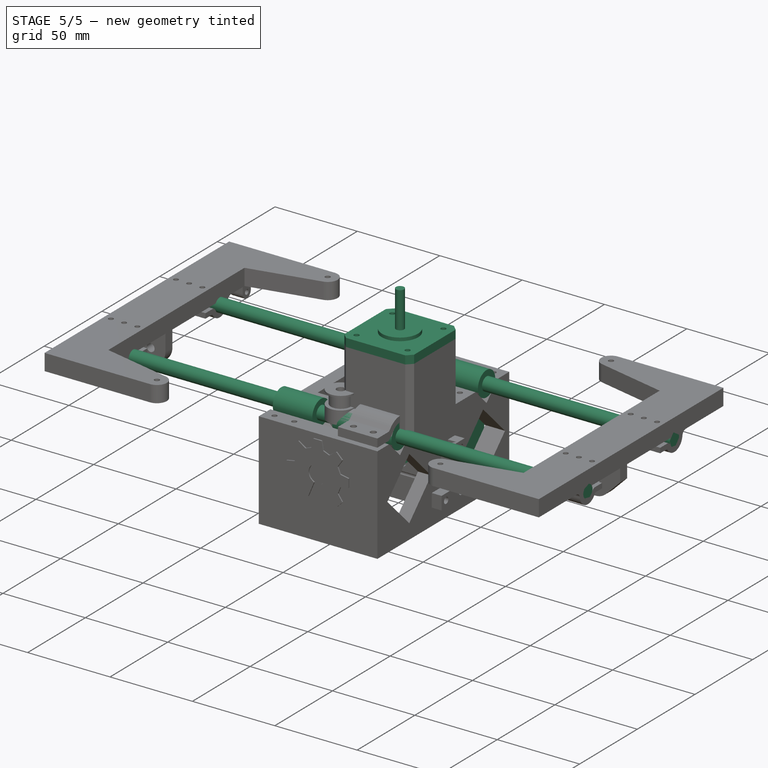
[diagram: stage 5 of 5 — iso view after this stage's code; geometry added in this stage tinted green]
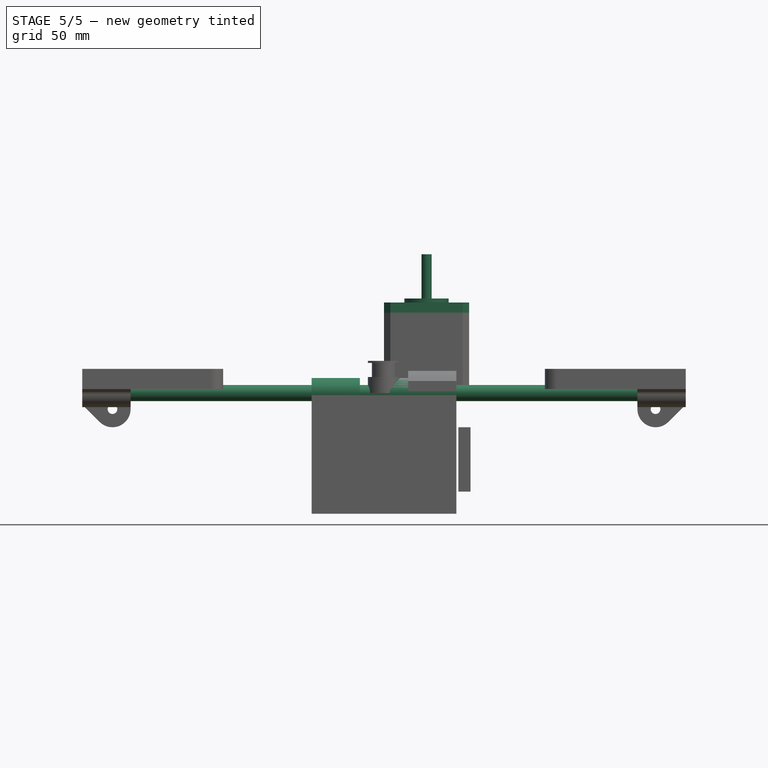
[diagram: stage 5 of 5 — front view after this stage's code; geometry added in this stage tinted green]
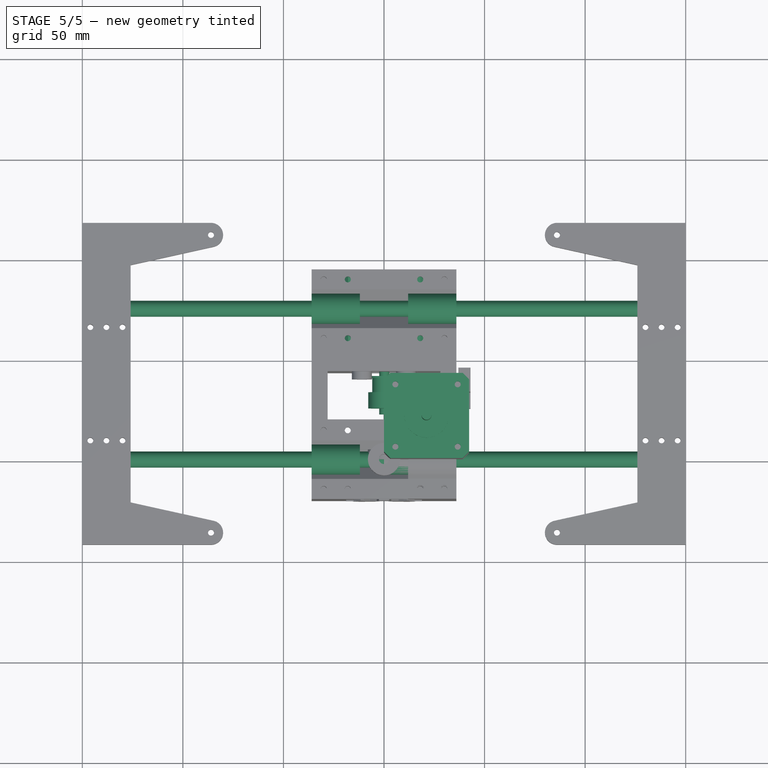
[diagram: stage 5 of 5 — top view after this stage's code; geometry added in this stage tinted green]
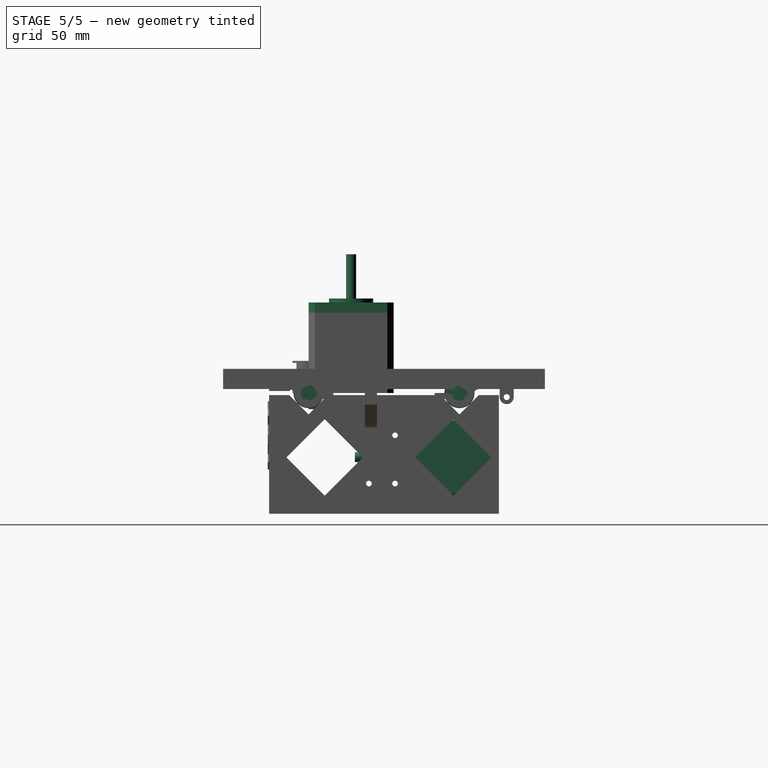
[diagram: stage 5 of 5 — right view after this stage's code; geometry added in this stage tinted green]
FEATURE [Sketcher::SketchObject] Sketch
  Placement = pos=(0,0,0) rot=(1,0,0;1.5708rad)
  sketch-geometry (4):
    g0: LineSegment StartX=0 StartY=7.5 StartZ=0 EndX=24 EndY=7.5 EndZ=0
    g1: LineSegment StartX=24 StartY=7.5 StartZ=0 EndX=24 EndY=4 EndZ=0
    g2: LineSegment StartX=24 StartY=4 StartZ=0 EndX=0 EndY=4 EndZ=0
    g3: LineSegment StartX=0 StartY=4 StartZ=0 EndX=0 EndY=7.5 EndZ=0
  constraints (12):
    c: Coincident(g0,g1)
    c: Coincident(g1,g2)
    c: Coincident(g2,g3)
    c: Coincident(g3,g0)
    c: Horizontal(g0)
    c: Horizontal(g2)
    c: Vertical(g1)
    c: Vertical(g3)
    c: PointOnObject(g0,g-2)
    c: DistanceY(g2) = 4
    c: DistanceY(g0) = 7.5
    c: DistanceX(g0) = 24
FEATURE [PartDesign::Revolution] Revolution  label="LM8UU"
  Angle = 360
  Axis = (1,0,0)
  Base = (0,0,0)
  Placement = pos=(0,0,0) rot=(1,0,0;1.5708rad)
  ReferenceAxis = -> Sketch [H_Axis]
  Sketch = -> Sketch
FEATURE [Sketcher::SketchObject] Sketch002  label="Motor001"
  Placement = pos=(0,0,40) rot=(0,0,1;0rad)
  Support = -> Pad [Face10]
  sketch-geometry (19):
    g0: LineSegment StartX=3.15 StartY=0 StartZ=0 EndX=0 EndY=3.15 EndZ=0
    g1: LineSegment StartX=0 StartY=3.15 StartZ=0 EndX=0 EndY=39.15 EndZ=0
    g2: LineSegment StartX=0 StartY=39.15 StartZ=0 EndX=3.15 EndY=42.3 EndZ=0
    g3: LineSegment StartX=3.15 StartY=42.3 StartZ=0 EndX=39.15 EndY=42.3 EndZ=0
    g4: LineSegment StartX=39.15 StartY=42.3 StartZ=0 EndX=42.3 EndY=39.15 EndZ=0
    g5: LineSegment StartX=42.3 StartY=39.15 StartZ=0 EndX=42.3 EndY=3.15 EndZ=0
    g6: LineSegment StartX=42.3 StartY=3.15 StartZ=0 EndX=39.15 EndY=0 EndZ=0
    g7: LineSegment StartX=39.15 StartY=0 StartZ=0 EndX=3.15 EndY=0 EndZ=0
    g8: LineSegment [constr] StartX=1.575 StartY=1.575 StartZ=0 EndX=40.725 EndY=40.725 EndZ=0
    g9: LineSegment [constr] StartX=1.575 StartY=40.725 StartZ=0 EndX=40.725 EndY=1.575 EndZ=0
    g10: Circle [constr] CenterX=21.15 CenterY=21.15 CenterZ=0 NormalX=0 NormalY=0 NormalZ=1 Radius=11
    g11: Circle [constr] CenterX=21.15 CenterY=21.15 CenterZ=0 NormalX=0 NormalY=0 NormalZ=1 Radius=2.5
    g12: Circle CenterX=5.65 CenterY=36.65 CenterZ=0 NormalX=0 NormalY=0 NormalZ=1 Radius=1.5
    g13: Circle CenterX=36.65 CenterY=36.65 CenterZ=0 NormalX=0 NormalY=0 NormalZ=1 Radius=1.5
    g14: Circle CenterX=36.65 CenterY=5.65 CenterZ=0 NormalX=0 NormalY=0 NormalZ=1 Radius=1.5
    g15: Circle CenterX=5.65 CenterY=5.65 CenterZ=0 NormalX=0 NormalY=0 NormalZ=1 Radius=1.5
    g16: LineSegment [constr] StartX=5.65 StartY=36.65 StartZ=0 EndX=36.65 EndY=36.65 EndZ=0
    g17: LineSegment [constr] StartX=36.65 StartY=36.65 StartZ=0 EndX=36.65 EndY=5.65 EndZ=0
    g18: LineSegment [constr] StartX=36.65 StartY=5.65 StartZ=0 EndX=5.65 EndY=5.65 EndZ=0
  constraints (54):
    c: Coincident(g0,g1)
    c: Vertical(g1)
    c: Coincident(g1,g2)
    c: Coincident(g2,g3)
    c: Horizontal(g3)
    c: Coincident(g3,g4)
    c: Coincident(g4,g5)
    c: Vertical(g5)
    c: Coincident(g5,g6)
    c: Coincident(g6,g7)
    c: Coincident(g7,g0)
    c: Horizontal(g7)
    c: Parallel(g0,g4)
    c: Perpendicular(g6,g4)
    c: Angle(g2) = 0.785398
    c: Equal(g3,g1)
    c: Equal(g1,g5)
    c: Equal(g5,g7)
    c: Equal(g2,g4)
    c: Distance(g1,g4) = 42.3
    c: Distance(g3) = 36
    c: PointOnObject(g0,g-2)
    c: PointOnObject(g0,g-1)
    c: PointOnObject(g8,g0)
    c: PointOnObject(g8,g4)
    c: Angle(g8) = 0.785398
    c: Symmetric(g0,g0,g8)
    c: PointOnObject(g9,g2)
    c: PointOnObject(g9,g6)
    c: Perpendicular(g9,g8)
    c: Symmetric(g5,g6,g9)
    c: PointOnObject(g10,g9)
    c: PointOnObject(g10,g8)
    c: Radius(g10) = 11
    c: Coincident(g11,g10)
    c: Radius(g11) = 2.5
    c: PointOnObject(g12,g9)
    c: Radius(g12) = 1.5
    c: PointOnObject(g13,g8)
    c: PointOnObject(g14,g9)
    c: PointOnObject(g15,g8)
    c: Equal(g15,g14)
    c: Equal(g14,g13)
    c: Equal(g13,g12)
    c: Coincident(g16,g12)
    c: Coincident(g16,g13)
    c: Horizontal(g16)
    c: Coincident(g17,g13)
    c: Coincident(g17,g14)
    c: Vertical(g17)
    c: Coincident(g18,g14)
    c: Coincident(g18,g15)
    c: Horizontal(g18)
    c: Distance(g16) = 31
FEATURE [PartDesign::Pad] Pad001
  Length = 5
  Length2 = 100
  Sketch = -> Sketch002
  Type = 0
FEATURE [Sketcher::SketchObject] Sketch003  label="Motor002"
  Placement = pos=(0,0,45) rot=(0,0,1;0rad)
  Support = -> Pad001 [Face1]
  sketch-geometry (19):
    g0: LineSegment [constr] StartX=3.15 StartY=0 StartZ=0 EndX=0 EndY=3.15 EndZ=0
    g1: LineSegment [constr] StartX=0 StartY=3.15 StartZ=0 EndX=0 EndY=39.15 EndZ=0
    g2: LineSegment [constr] StartX=0 StartY=39.15 StartZ=0 EndX=3.15 EndY=42.3 EndZ=0
    g3: LineSegment [constr] StartX=3.15 StartY=42.3 StartZ=0 EndX=39.15 EndY=42.3 EndZ=0
    g4: LineSegment [constr] StartX=39.15 StartY=42.3 StartZ=0 EndX=42.3 EndY=39.15 EndZ=0
    g5: LineSegment [constr] StartX=42.3 StartY=39.15 StartZ=0 EndX=42.3 EndY=3.15 EndZ=0
    g6: LineSegment [constr] StartX=42.3 StartY=3.15 StartZ=0 EndX=39.15 EndY=0 EndZ=0
    g7: LineSegment [constr] StartX=39.15 StartY=0 StartZ=0 EndX=3.15 EndY=0 EndZ=0
    g8: LineSegment [constr] StartX=1.575 StartY=1.575 StartZ=0 EndX=40.725 EndY=40.725 EndZ=0
    g9: LineSegment [constr] StartX=1.575 StartY=40.725 StartZ=0 EndX=40.725 EndY=1.575 EndZ=0
    g10: Circle CenterX=21.15 CenterY=21.15 CenterZ=0 NormalX=0 NormalY=0 NormalZ=1 Radius=11
    g11: Circle [constr] CenterX=21.15 CenterY=21.15 CenterZ=0 NormalX=0 NormalY=0 NormalZ=1 Radius=2.5
    g12: Circle [constr] CenterX=5.65 CenterY=36.65 CenterZ=0 NormalX=0 NormalY=0 NormalZ=1 Radius=1.5
    g13: Circle [constr] CenterX=36.65 CenterY=36.65 CenterZ=0 NormalX=0 NormalY=0 NormalZ=1 Radius=1.5
    g14: Circle [constr] CenterX=36.65 CenterY=5.65 CenterZ=0 NormalX=0 NormalY=0 NormalZ=1 Radius=1.5
    g15: Circle [constr] CenterX=5.65 CenterY=5.65 CenterZ=0 NormalX=0 NormalY=0 NormalZ=1 Radius=1.5
    g16: LineSegment [constr] StartX=5.65 StartY=36.65 StartZ=0 EndX=36.65 EndY=36.65 EndZ=0
    g17: LineSegment [constr] StartX=36.65 StartY=36.65 StartZ=0 EndX=36.65 EndY=5.65 EndZ=0
    g18: LineSegment [constr] StartX=36.65 StartY=5.65 StartZ=0 EndX=5.65 EndY=5.65 EndZ=0
  constraints (54):
    c: Coincident(g0,g1)
    c: Vertical(g1)
    c: Coincident(g1,g2)
    c: Coincident(g2,g3)
    c: Horizontal(g3)
    c: Coincident(g3,g4)
    c: Coincident(g4,g5)
    c: Vertical(g5)
    c: Coincident(g5,g6)
    c: Coincident(g6,g7)
    c: Coincident(g7,g0)
    c: Horizontal(g7)
    c: Parallel(g0,g4)
    c: Perpendicular(g6,g4)
    c: Angle(g2) = 0.785398
    c: Equal(g3,g1)
    c: Equal(g1,g5)
    c: Equal(g5,g7)
    c: Equal(g2,g4)
    c: Distance(g1,g4) = 42.3
    c: Distance(g3) = 36
    c: PointOnObject(g0,g-2)
    c: PointOnObject(g0,g-1)
    c: PointOnObject(g8,g0)
    c: PointOnObject(g8,g4)
    c: Angle(g8) = 0.785398
    c: Symmetric(g0,g0,g8)
    c: PointOnObject(g9,g2)
    c: PointOnObject(g9,g6)
    c: Perpendicular(g9,g8)
    c: Symmetric(g5,g6,g9)
    c: PointOnObject(g10,g9)
    c: PointOnObject(g10,g8)
    c: Radius(g10) = 11
    c: Coincident(g11,g10)
    c: Radius(g11) = 2.5
    c: PointOnObject(g12,g9)
    c: Radius(g12) = 1.5
    c: PointOnObject(g13,g8)
    c: PointOnObject(g14,g9)
    c: PointOnObject(g15,g8)
    c: Equal(g15,g14)
    c: Equal(g14,g13)
    c: Equal(g13,g12)
    c: Coincident(g16,g12)
    c: Coincident(g16,g13)
    c: Horizontal(g16)
    c: Coincident(g17,g13)
    c: Coincident(g17,g14)
    c: Vertical(g17)
    c: Coincident(g18,g14)
    c: Coincident(g18,g15)
    c: Horizontal(g18)
    c: Distance(g16) = 31
FEATURE [PartDesign::Pad] Pad002
  Length = 2
  Length2 = 100
  Sketch = -> Sketch003
  Type = 0
FEATURE [Sketcher::SketchObject] Sketch004  label="Motor003"
  Placement = pos=(0,0,47) rot=(0,0,1;0rad)
  Support = -> Pad002 [Face20]
  sketch-geometry (19):
    g0: LineSegment [constr] StartX=3.15 StartY=0 StartZ=0 EndX=0 EndY=3.15 EndZ=0
    g1: LineSegment [constr] StartX=0 StartY=3.15 StartZ=0 EndX=0 EndY=39.15 EndZ=0
    g2: LineSegment [constr] StartX=0 StartY=39.15 StartZ=0 EndX=3.15 EndY=42.3 EndZ=0
    g3: LineSegment [constr] StartX=3.15 StartY=42.3 StartZ=0 EndX=39.15 EndY=42.3 EndZ=0
    g4: LineSegment [constr] StartX=39.15 StartY=42.3 StartZ=0 EndX=42.3 EndY=39.15 EndZ=0
    g5: LineSegment [constr] StartX=42.3 StartY=39.15 StartZ=0 EndX=42.3 EndY=3.15 EndZ=0
    g6: LineSegment [constr] StartX=42.3 StartY=3.15 StartZ=0 EndX=39.15 EndY=0 EndZ=0
    g7: LineSegment [constr] StartX=39.15 StartY=0 StartZ=0 EndX=3.15 EndY=0 EndZ=0
    g8: LineSegment [constr] StartX=1.575 StartY=1.575 StartZ=0 EndX=40.725 EndY=40.725 EndZ=0
    g9: LineSegment [constr] StartX=1.575 StartY=40.725 StartZ=0 EndX=40.725 EndY=1.575 EndZ=0
    g10: Circle [constr] CenterX=21.15 CenterY=21.15 CenterZ=0 NormalX=0 NormalY=0 NormalZ=1 Radius=11
    g11: Circle CenterX=21.15 CenterY=21.15 CenterZ=0 NormalX=0 NormalY=0 NormalZ=1 Radius=2.5
    g12: Circle [constr] CenterX=5.65 CenterY=36.65 CenterZ=0 NormalX=0 NormalY=0 NormalZ=1 Radius=1.5
    g13: Circle [constr] CenterX=36.65 CenterY=36.65 CenterZ=0 NormalX=0 NormalY=0 NormalZ=1 Radius=1.5
    g14: Circle [constr] CenterX=36.65 CenterY=5.65 CenterZ=0 NormalX=0 NormalY=0 NormalZ=1 Radius=1.5
    g15: Circle [constr] CenterX=5.65 CenterY=5.65 CenterZ=0 NormalX=0 NormalY=0 NormalZ=1 Radius=1.5
    g16: LineSegment [constr] StartX=5.65 StartY=36.65 StartZ=0 EndX=36.65 EndY=36.65 EndZ=0
    g17: LineSegment [constr] StartX=36.65 StartY=36.65 StartZ=0 EndX=36.65 EndY=5.65 EndZ=0
    g18: LineSegment [constr] StartX=36.65 StartY=5.65 StartZ=0 EndX=5.65 EndY=5.65 EndZ=0
  constraints (54):
    c: Coincident(g0,g1)
    c: Vertical(g1)
    c: Coincident(g1,g2)
    c: Coincident(g2,g3)
    c: Horizontal(g3)
    c: Coincident(g3,g4)
    c: Coincident(g4,g5)
    c: Vertical(g5)
    c: Coincident(g5,g6)
    c: Coincident(g6,g7)
    c: Coincident(g7,g0)
    c: Horizontal(g7)
    c: Parallel(g0,g4)
    c: Perpendicular(g6,g4)
    c: Angle(g2) = 0.785398
    c: Equal(g3,g1)
    c: Equal(g1,g5)
    c: Equal(g5,g7)
    c: Equal(g2,g4)
    c: Distance(g1,g4) = 42.3
    c: Distance(g3) = 36
    c: PointOnObject(g0,g-2)
    c: PointOnObject(g0,g-1)
    c: PointOnObject(g8,g0)
    c: PointOnObject(g8,g4)
    c: Angle(g8) = 0.785398
    c: Symmetric(g0,g0,g8)
    c: PointOnObject(g9,g2)
    c: PointOnObject(g9,g6)
    c: Perpendicular(g9,g8)
    c: Symmetric(g5,g6,g9)
    c: PointOnObject(g10,g9)
    c: PointOnObject(g10,g8)
    c: Radius(g10) = 11
    c: Coincident(g11,g10)
    c: Radius(g11) = 2.5
    c: PointOnObject(g12,g9)
    c: Radius(g12) = 1.5
    c: PointOnObject(g13,g8)
    c: PointOnObject(g14,g9)
    c: PointOnObject(g15,g8)
    c: Equal(g15,g14)
    c: Equal(g14,g13)
    c: Equal(g13,g12)
    c: Coincident(g16,g12)
    c: Coincident(g16,g13)
    c: Horizontal(g16)
    c: Coincident(g17,g13)
    c: Coincident(g17,g14)
    c: Vertical(g17)
    c: Coincident(g18,g14)
    c: Coincident(g18,g15)
    c: Horizontal(g18)
    c: Distance(g16) = 31
FEATURE [PartDesign::Pad] Pad003  label="NEMA_17"
  Length = 22
  Length2 = 100
  Sketch = -> Sketch004
  Type = 0
FEATURE [Part::Feature] Revolution003  label="16Tpulley_copy001"
  Placement = pos=(21.15,-68,21.15) rot=(0,0,1;0rad)
  shape: bbox 16 x 16 x 16 mm, 8 faces (baked)
FEATURE [App::DocumentObjectGroup] Group  label="motor"
  Group = -> [Pad,Pad001,Pad002,Pad003,Pad004,Revolution002,Revolution003]
FEATURE [Part::Compound] Compound  label="motorwpulley"
  Links = -> [Revolution003,Pad004]
  Placement = pos=(-21,94,-53) rot=(0,0,1;0rad)
FEATURE [Part::Feature] Revolution004  label="LM8UU_copy002"
  Placement = pos=(-24,0,0) rot=(1,0,0;1.5708rad)
  shape: bbox 24 x 15 x 15 mm, 4 faces (baked)
FEATURE [Part::Feature] Revolution005  label="LM8UU_copy003"
  Placement = pos=(24,0,0) rot=(1,0,0;1.5708rad)
  shape: bbox 24 x 15 x 15 mm, 4 faces (baked)
FEATURE [Part::Feature] Pad007  label="8mmRod002"
  Placement = pos=(12,0,0) rot=(0.707107,0,0.707107;3.14159rad)
  shape: bbox 300 x 8 x 8 mm, 3 faces (baked)
FEATURE [Part::Compound] Compound002
  Links = -> [Revolution004,Pad007,Revolution005]
  Placement = pos=(-12,75,0) rot=(0,0,1;0rad)
FEATURE [Part::Feature] Revolution007  label="625zz_copy001"
  Placement = pos=(-11,35,-8) rot=(0.57735,0.57735,0.57735;2.0944rad)
  shape: bbox 16 x 5 x 16 mm, 4 faces (baked)
FEATURE [Part::Feature] Revolution008  label="625zz_copy002"
  Placement = pos=(11,35,-8) rot=(0.57735,0.57735,0.57735;2.0944rad)
  shape: bbox 16 x 5 x 16 mm, 4 faces (baked)
FEATURE [Sketcher::SketchObject] Sketch007
  Placement = pos=(0,0,0) rot=(0.57735,0.57735,0.57735;2.0944rad)
  sketch-geometry (15):
    g0: LineSegment [constr] StartX=0 StartY=0 StartZ=0 EndX=75 EndY=0 EndZ=0
    g1: LineSegment StartX=9.6066 StartY=-1 StartZ=0 EndX=-1e-12 EndY=-10.6066 EndZ=0
    g2: LineSegment StartX=-1e-12 StartY=-10.6066 StartZ=0 EndX=-9.6066 EndY=-1 EndZ=0
    g3: LineSegment StartX=-9.6066 StartY=-1 StartZ=0 EndX=-19.6066 EndY=-1 EndZ=0
    g4: LineSegment StartX=-19.6066 StartY=-1 StartZ=0 EndX=-19.6066 EndY=-60 EndZ=0
    g5: LineSegment StartX=94.6066 StartY=-60 StartZ=0 EndX=94.6066 EndY=-1 EndZ=0
    g6: LineSegment StartX=94.6066 StartY=-1 StartZ=0 EndX=84.6066 EndY=-1 EndZ=0
    g7: LineSegment StartX=84.6066 StartY=-1 StartZ=0 EndX=75 EndY=-10.6066 EndZ=0
    g8: LineSegment StartX=75 StartY=-10.6066 StartZ=0 EndX=65.3934 EndY=-1 EndZ=0
    g9: LineSegment StartX=65.3934 StartY=-1 StartZ=0 EndX=9.6066 EndY=-1 EndZ=0
    g10: LineSegment [constr] StartX=-9.6066 StartY=-1 StartZ=0 EndX=9.6066 EndY=-1 EndZ=0
    g11: LineSegment [constr] StartX=84.6066 StartY=-1 StartZ=0 EndX=65.3934 EndY=-1 EndZ=0
    g12: Circle [constr] CenterX=0 CenterY=0 CenterZ=0 NormalX=0 NormalY=0 NormalZ=1 Radius=7.5
    g13: Circle [constr] CenterX=75 CenterY=0 CenterZ=0 NormalX=0 NormalY=0 NormalZ=1 Radius=7.5
    g14: LineSegment StartX=-19.6066 StartY=-60 StartZ=0 EndX=94.6066 EndY=-60 EndZ=0
  constraints (42):
    c: Coincident(g0,g-1)
    c: PointOnObject(g0,g-1)
    c: Distance(g0) = 75
    c: Coincident(g1,g2)
    c: Coincident(g2,g3)
    c: Coincident(g3,g4)
    c: Vertical(g5)
    c: Coincident(g5,g6)
    c: Coincident(g6,g7)
    c: Coincident(g7,g8)
    c: Coincident(g8,g9)
    c: Coincident(g9,g1)
    c: Horizontal(g9)
    c: Perpendicular(g7,g8)
    c: Perpendicular(g2,g1)
    c: Horizontal(g3)
    c: Horizontal(g6)
    c: Coincident(g10,g2)
    c: Coincident(g10,g1)
    c: Horizontal(g10)
    c: Coincident(g11,g6)
    c: Coincident(g11,g8)
    c: Horizontal(g11)
    c: Equal(g1,g2)
    c: Coincident(g12,g-1)
    c: Radius(g12) = 7.5
    c: Tangent(g2,g12)
    c: Tangent(g1,g12)
    c: Vertical(g4)
    c: DistanceY(g3) = -1
    c: Distance(g3) = 10
    c: Coincident(g13,g0)
    c: Equal(g13,g12)
    c: Tangent(g7,g13)
    c: Tangent(g8,g13)
    c: Equal(g7,g8)
    c: Distance(g6) = 10
    c: Distance(g5) = 59
    c: Coincident(g14,g5)
    c: Horizontal(g14)
    c: Equal(g4,g5)
    c: Coincident(g14,g4)
FEATURE [Part::Compound] Compound003
  Links = -> [Revolution004,Revolution005,Pad007]
  Placement = pos=(-12,0,0) rot=(0,0,1;0rad)
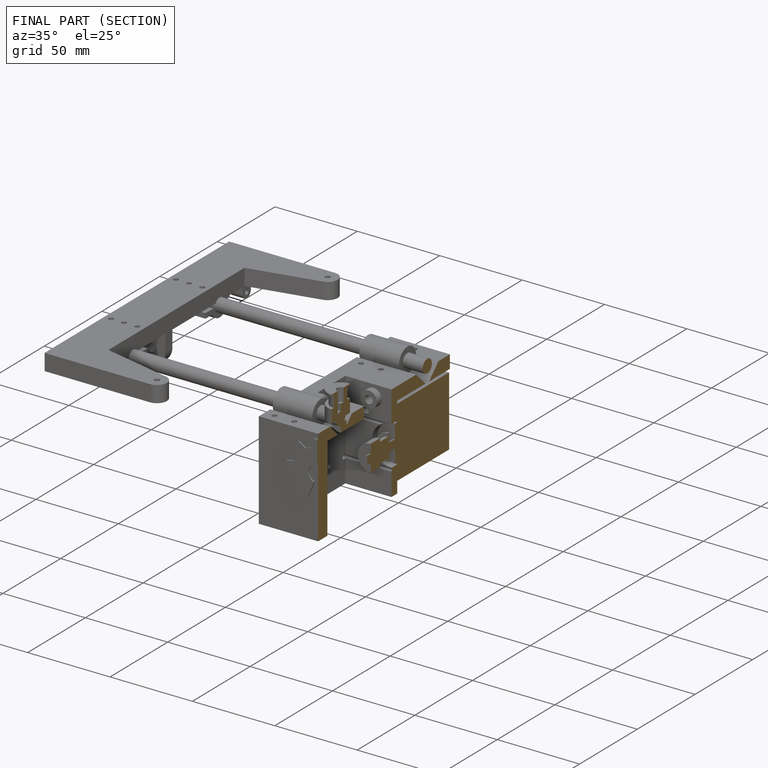
[diagram: finished part — half-section view (interior)]
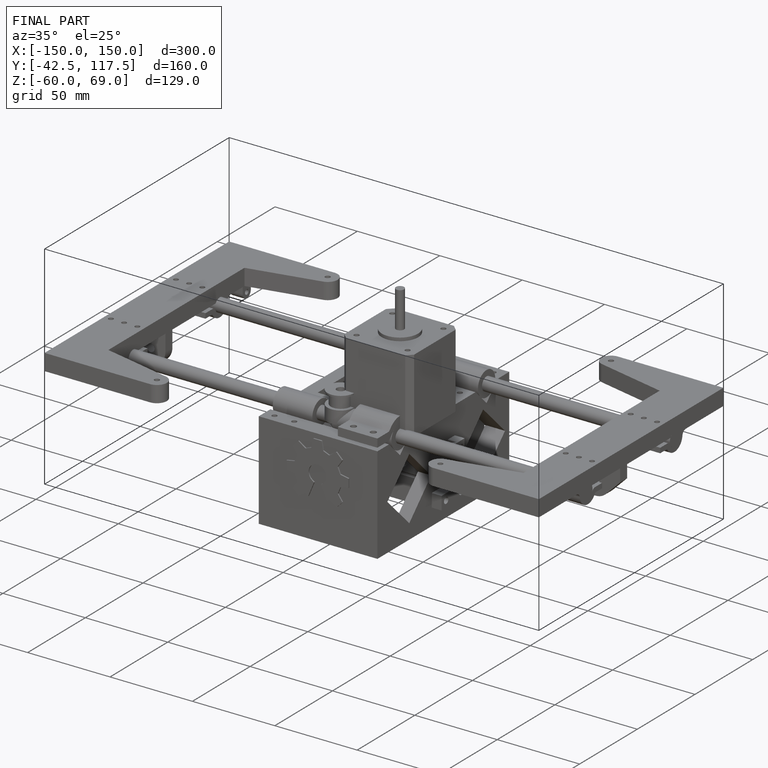
[diagram: finished part — iso view with bounding-box wireframe]
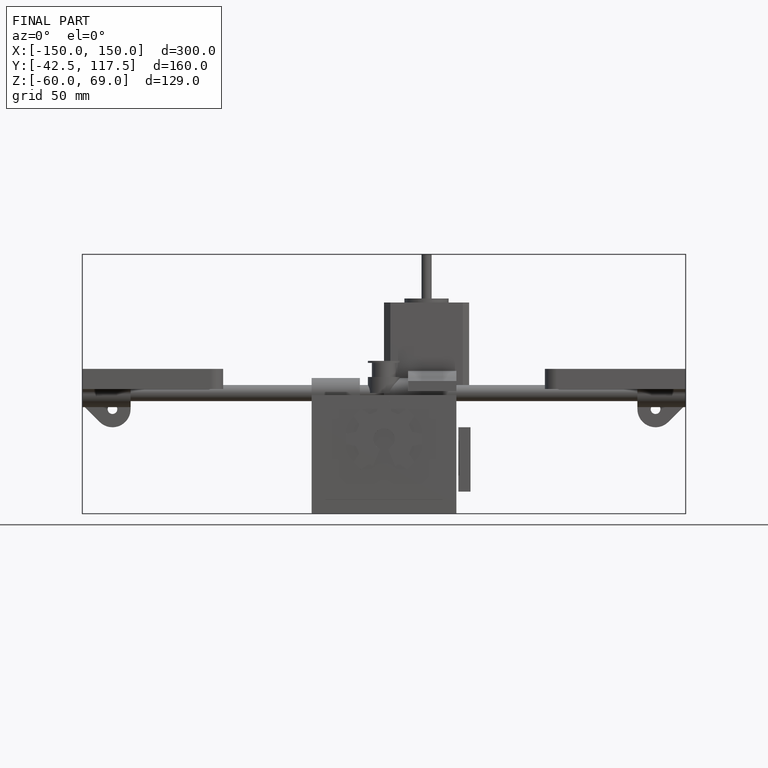
[diagram: finished part — front view with bounding-box wireframe]
